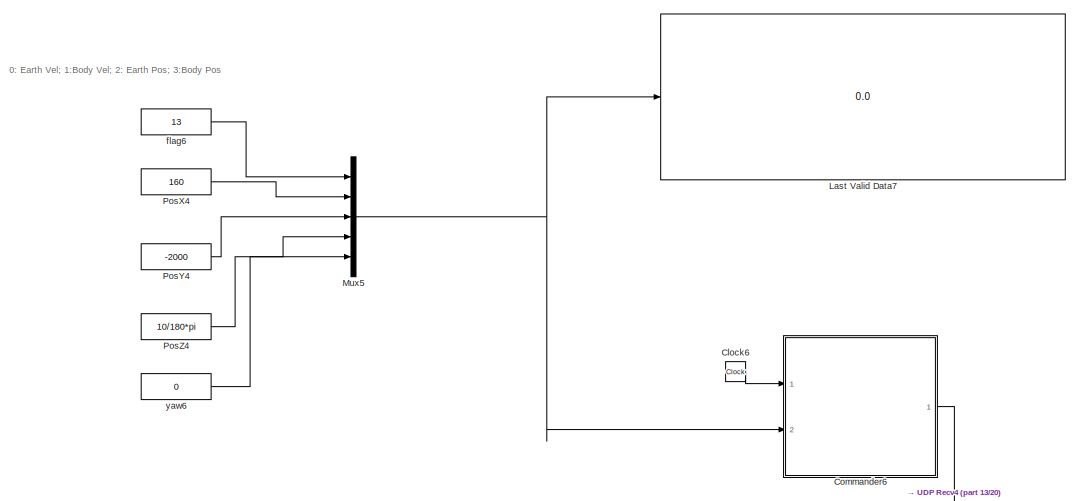
[diagram: root canvas - part 1/20, top center region]
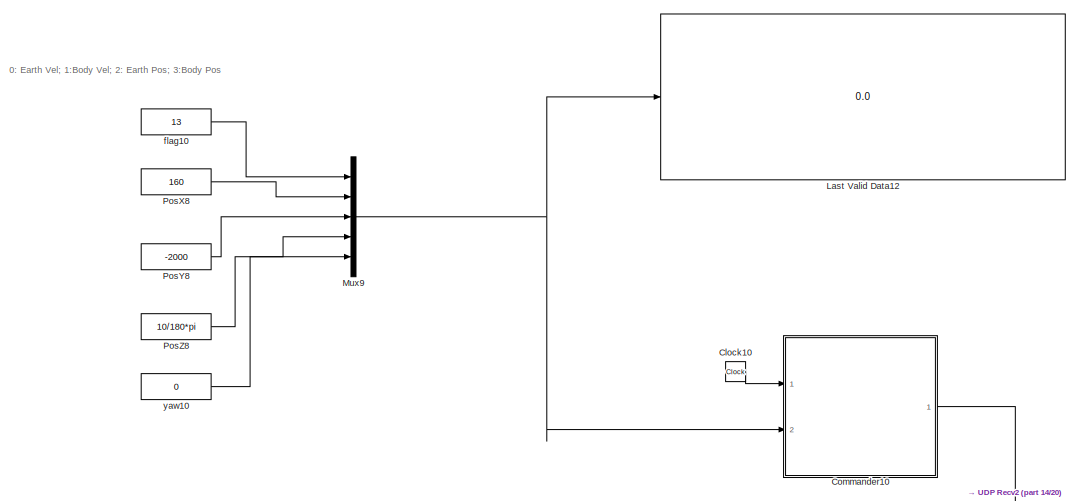
[diagram: root canvas - part 2/20, top right region]
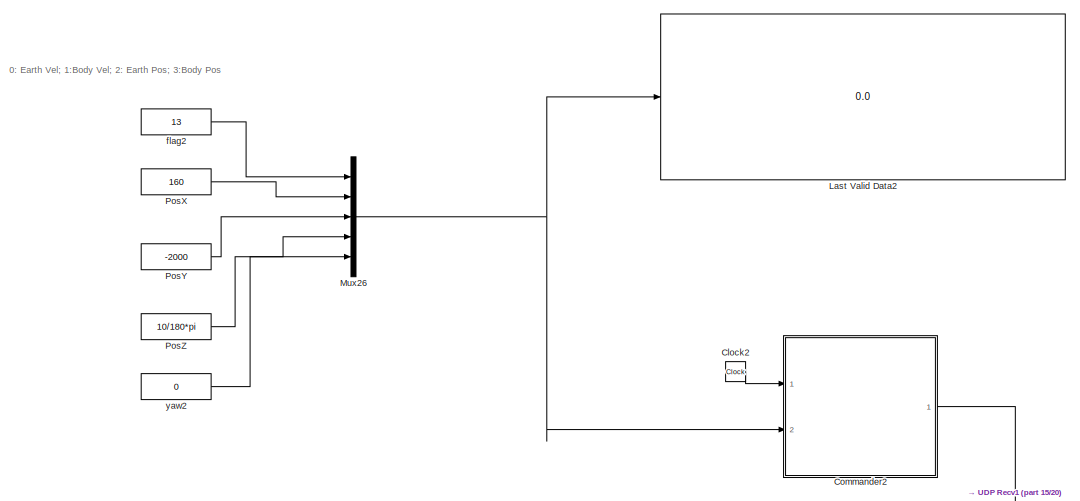
[diagram: root canvas - part 3/20, top left region]
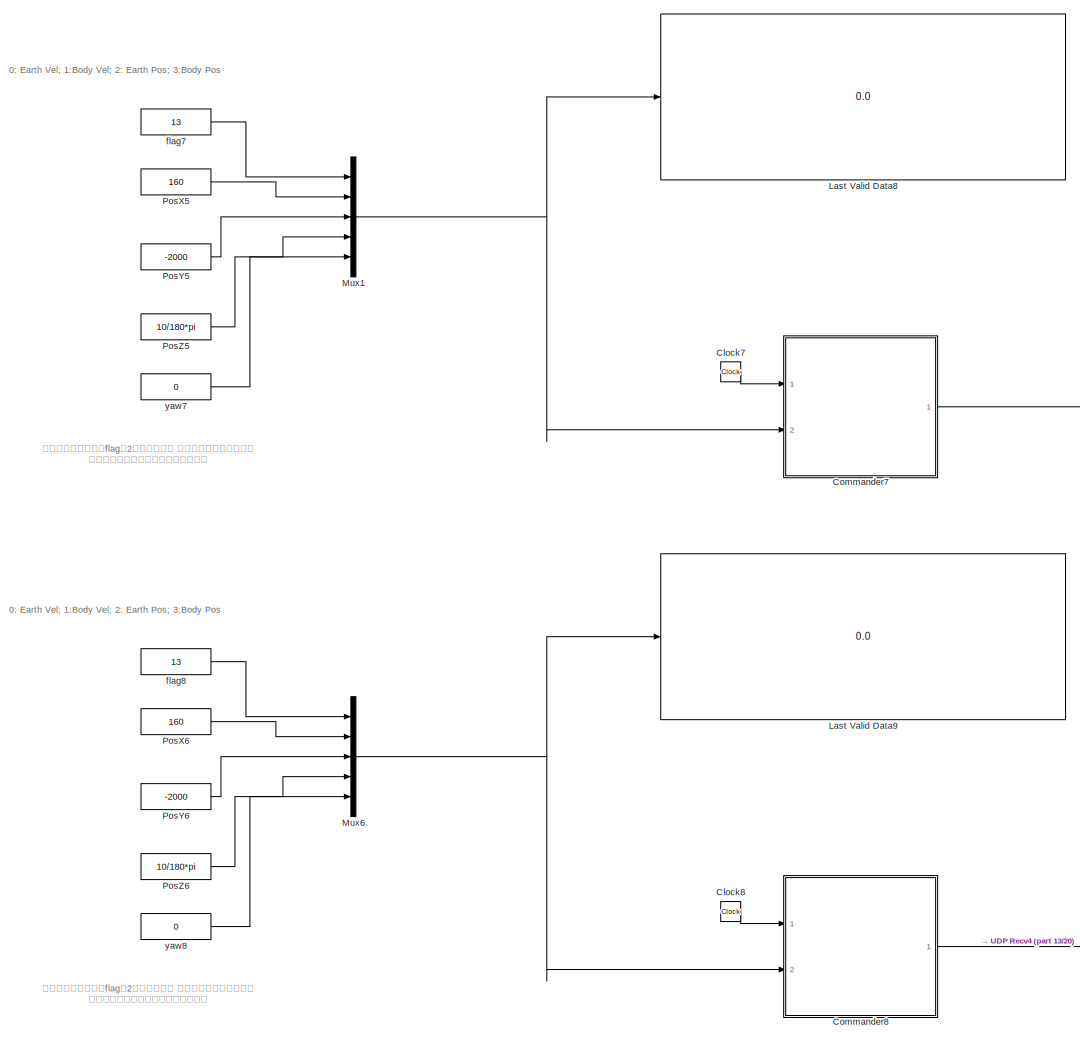
[diagram: root canvas - part 4/20, top center region]
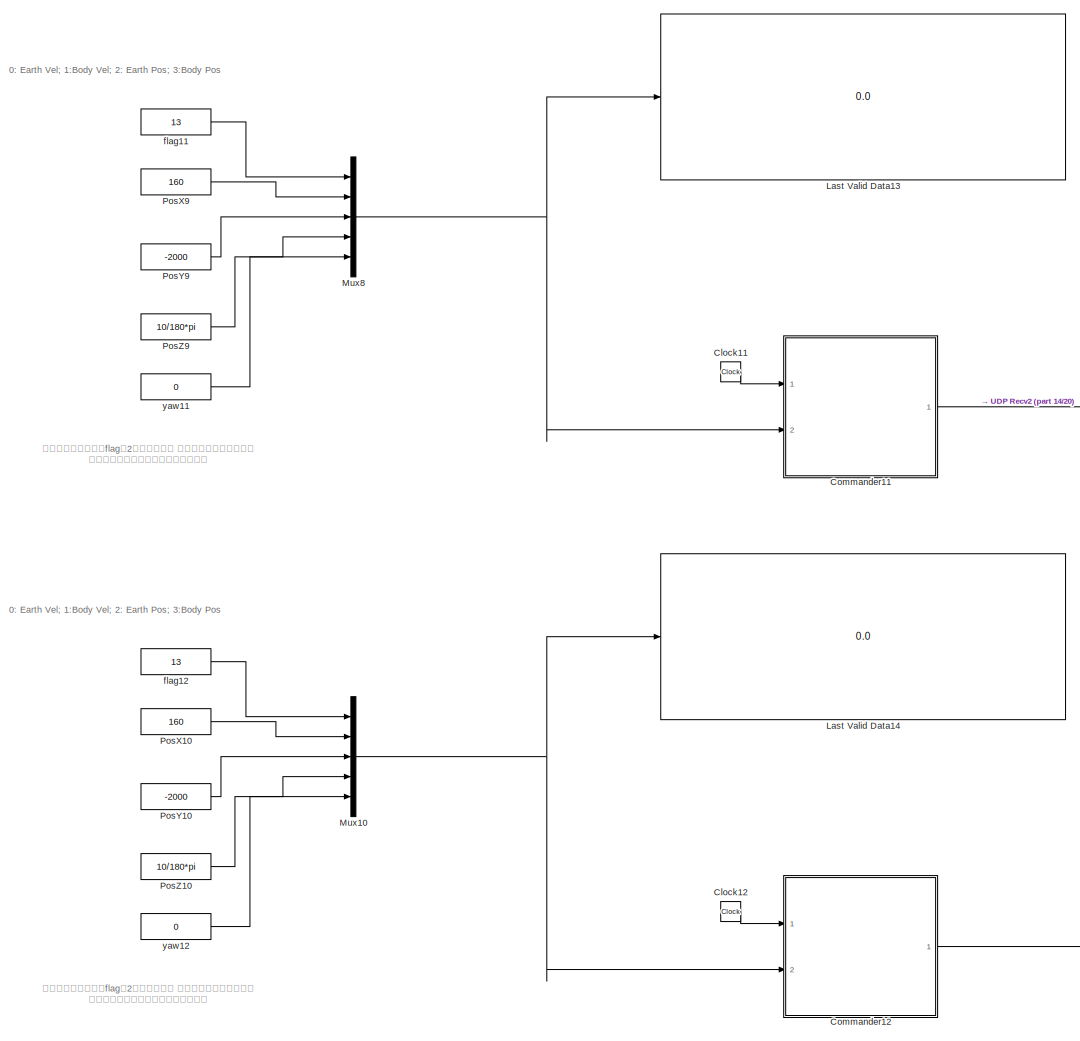
[diagram: root canvas - part 5/20, top right region]
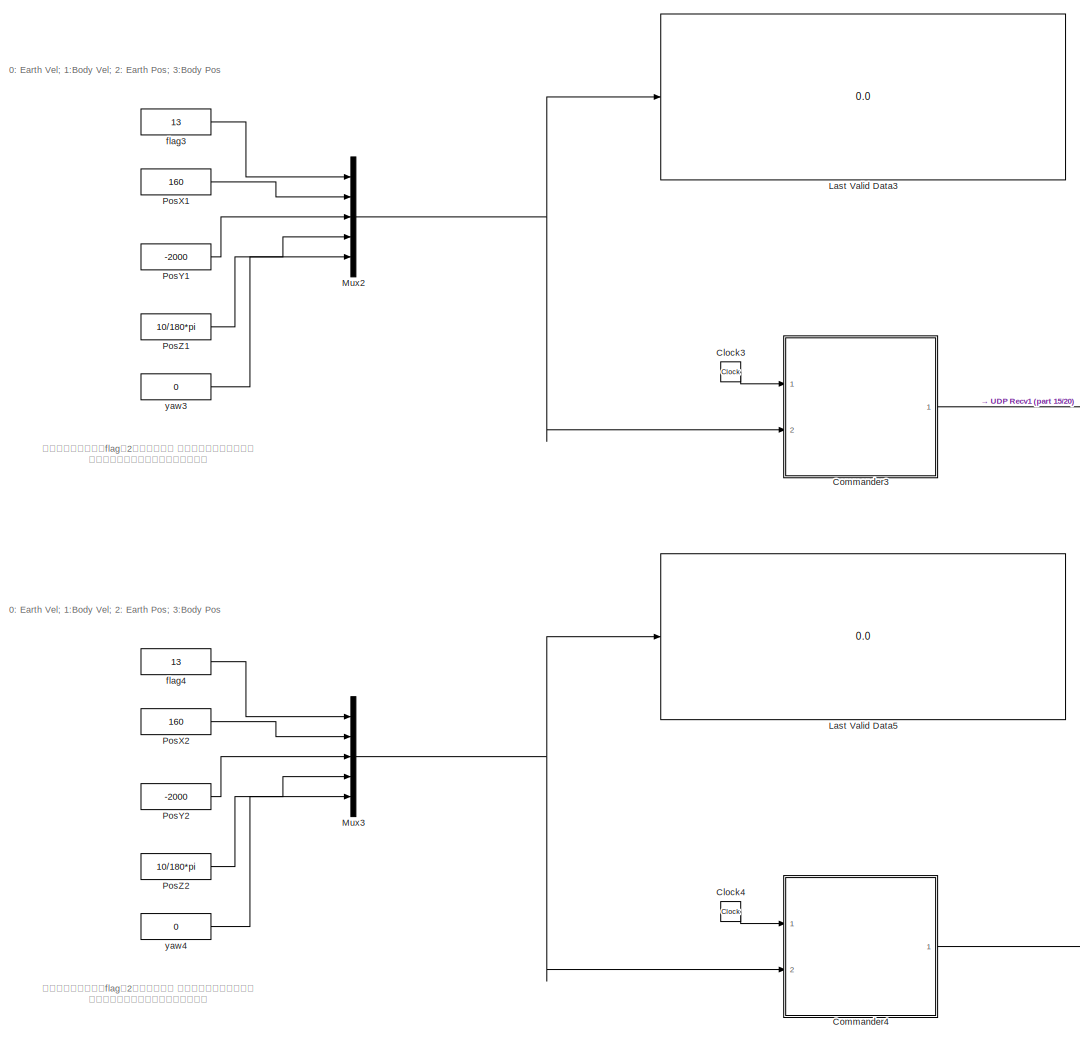
[diagram: root canvas - part 6/20, top left region]
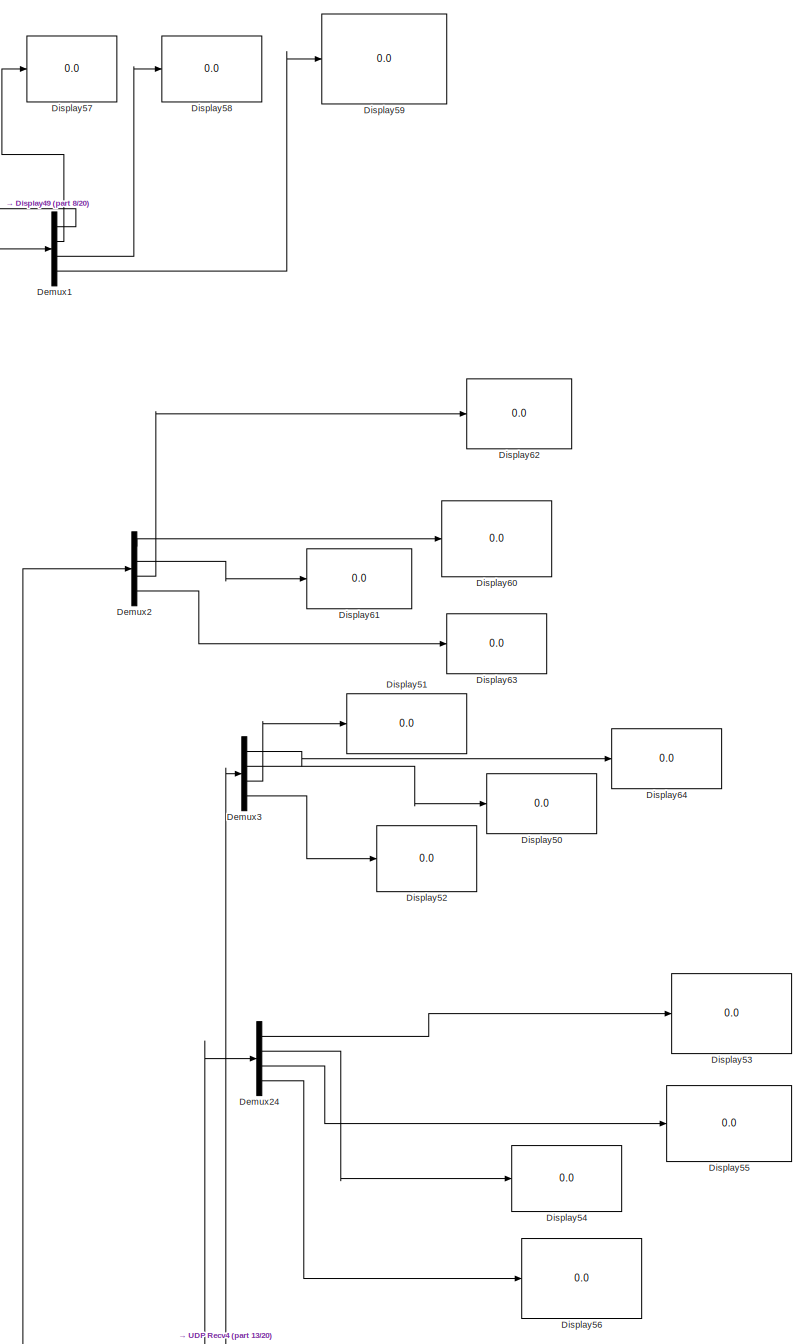
[diagram: root canvas - part 7/20, central region]
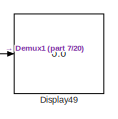
[diagram: root canvas - part 8/20, top center region]
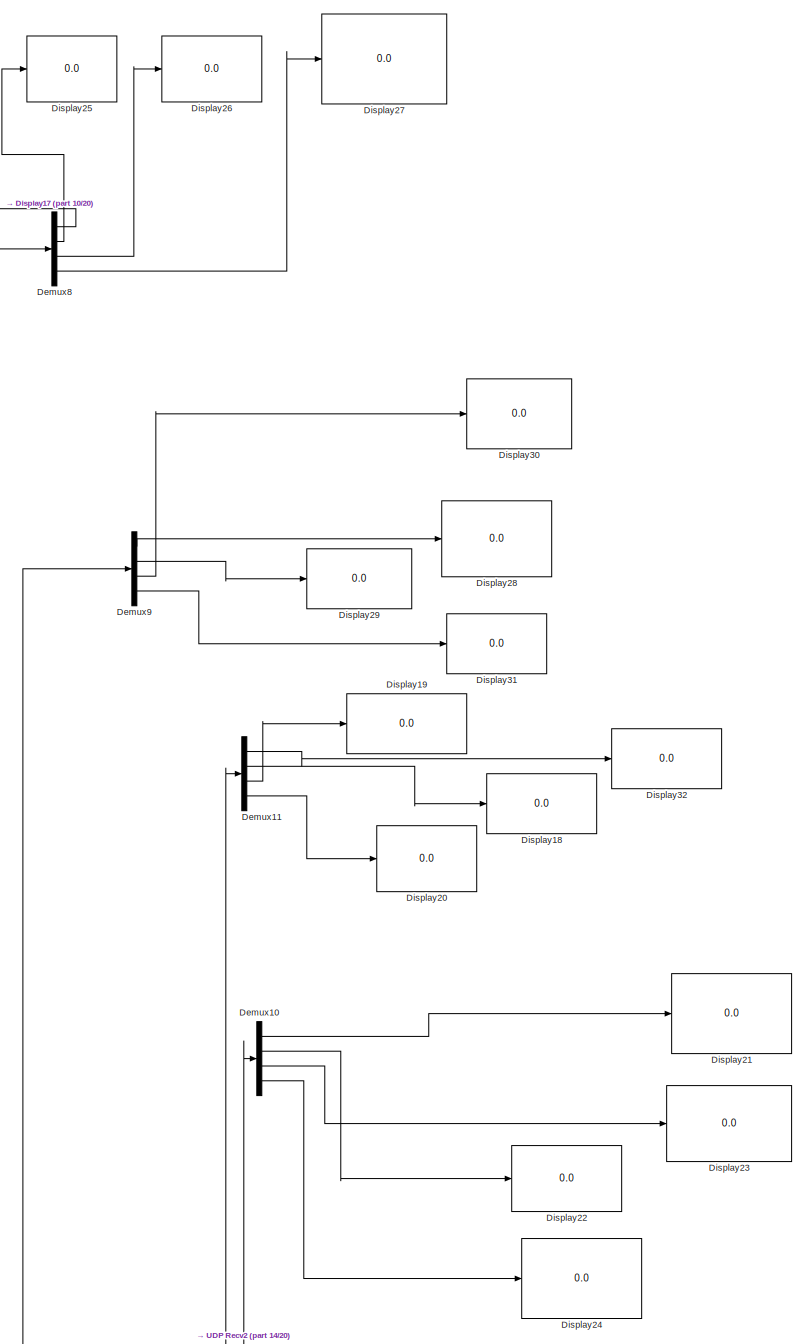
[diagram: root canvas - part 9/20, middle right region]
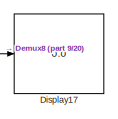
[diagram: root canvas - part 10/20, top right region]
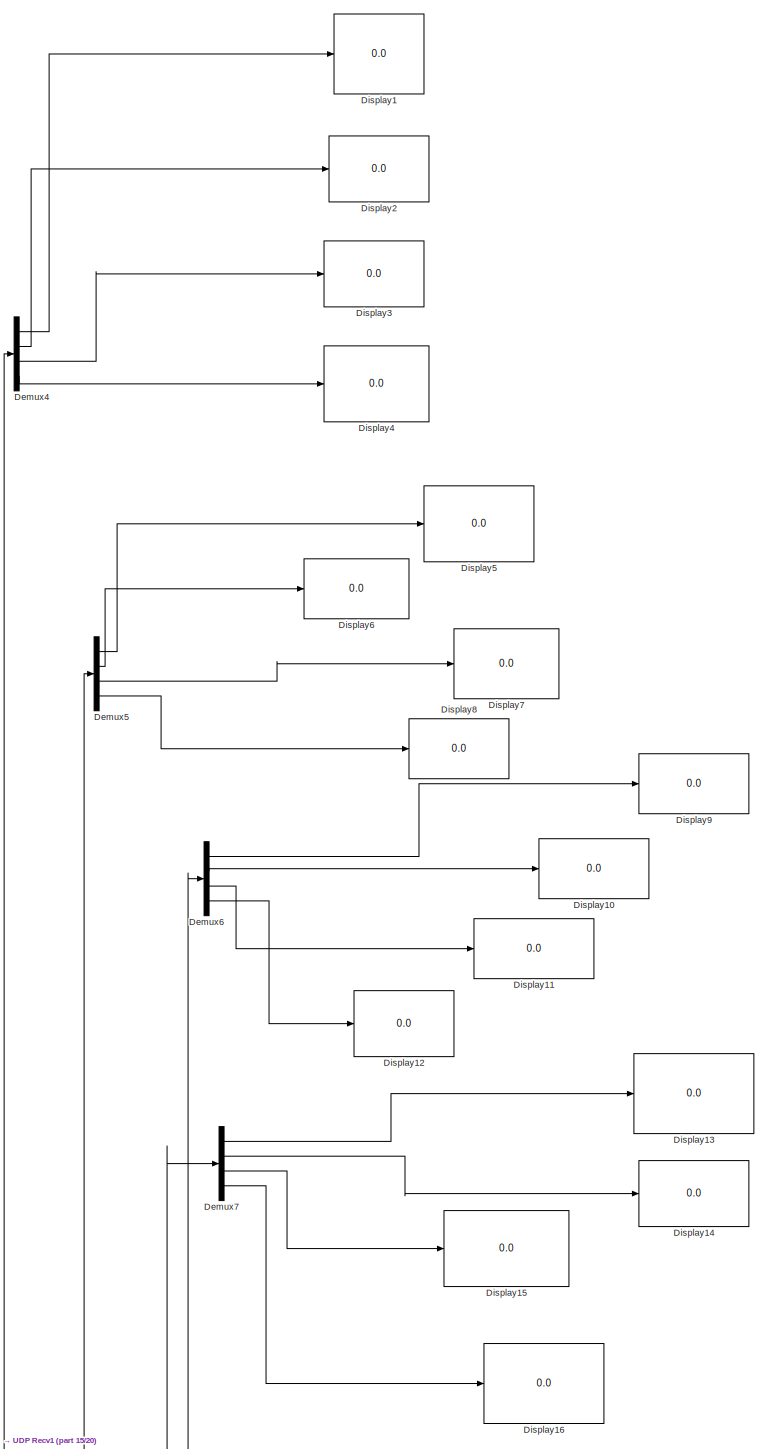
[diagram: root canvas - part 11/20, middle left region]
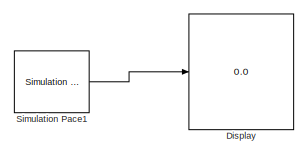
[diagram: root canvas - part 12/20, top left region]
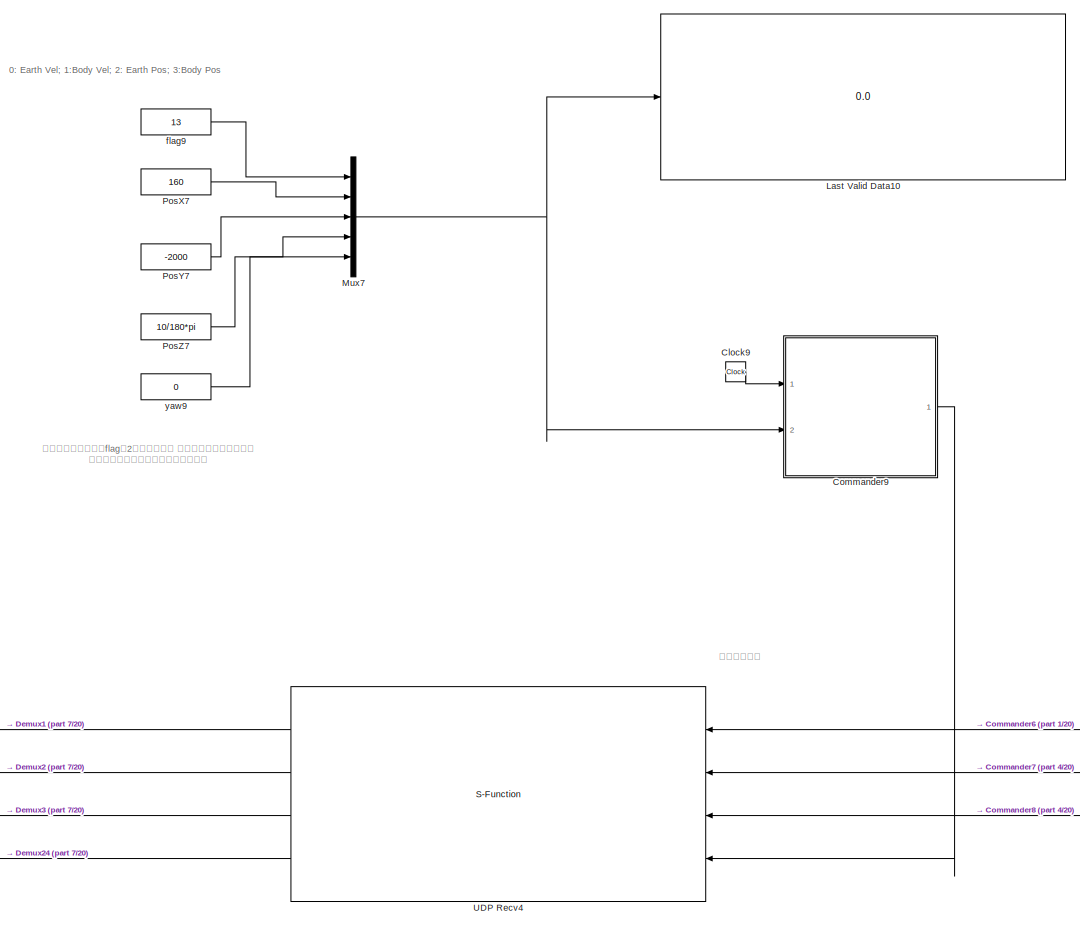
[diagram: root canvas - part 13/20, central region]
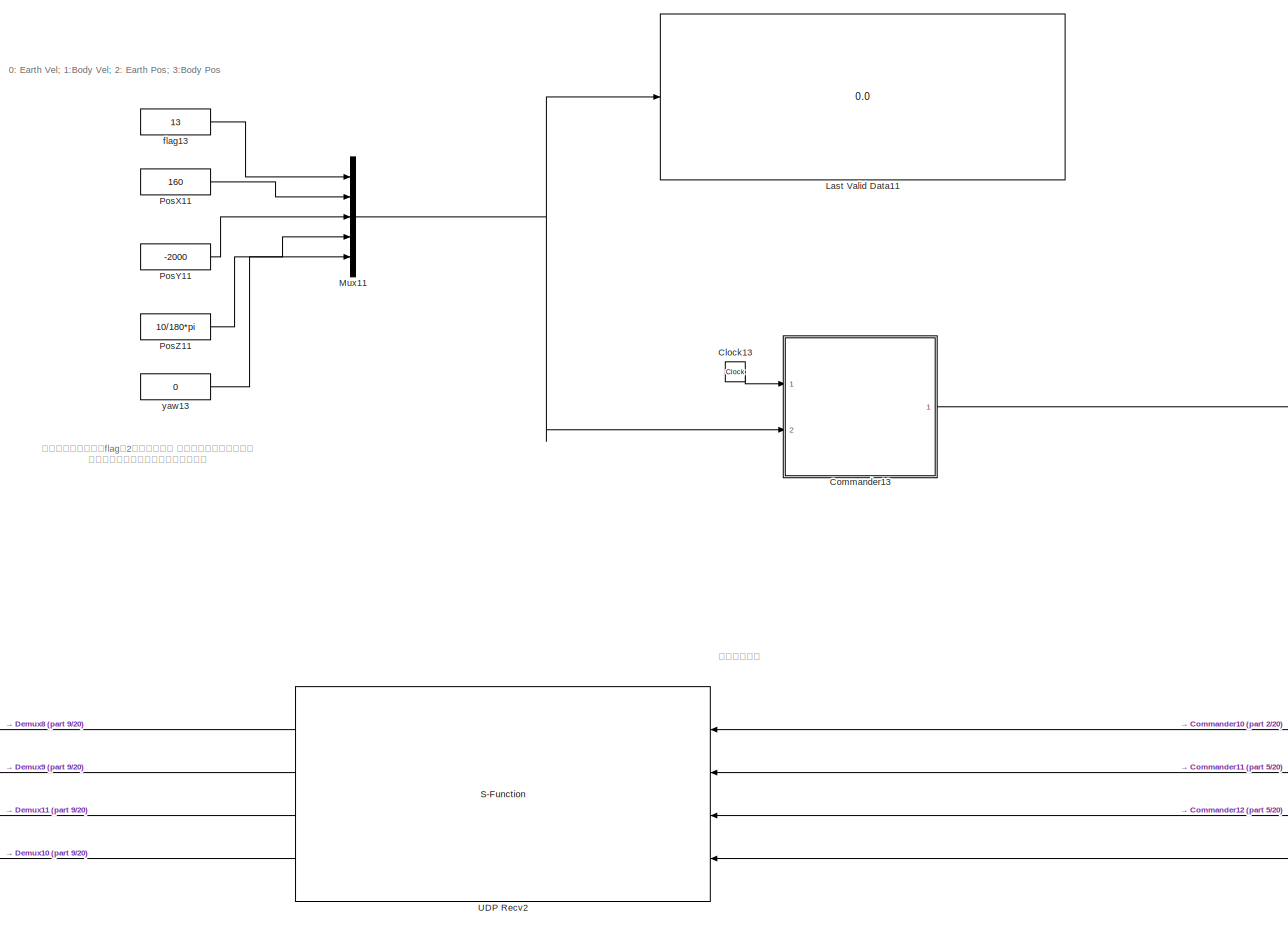
[diagram: root canvas - part 14/20, middle right region]
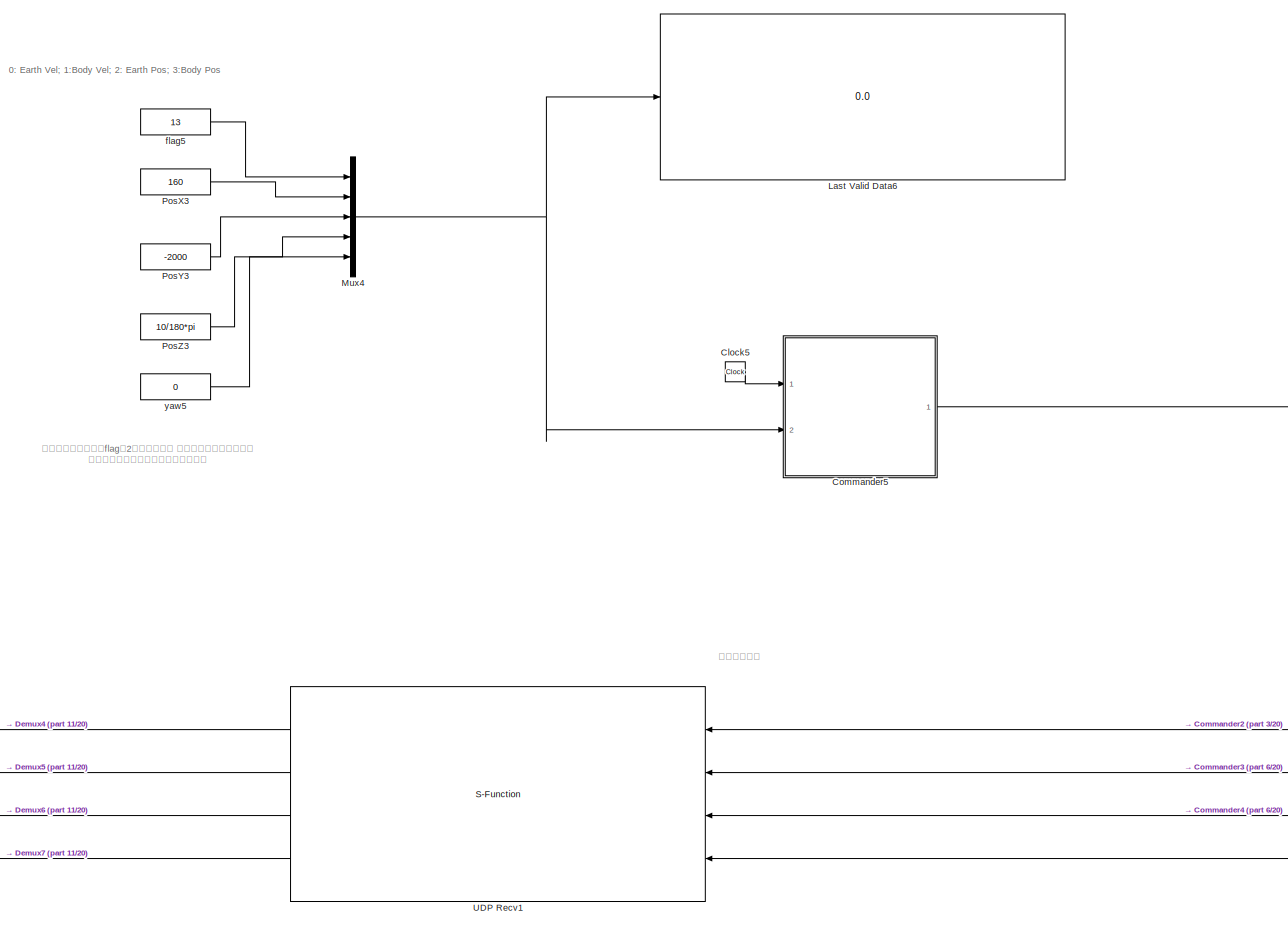
[diagram: root canvas - part 15/20, middle left region]
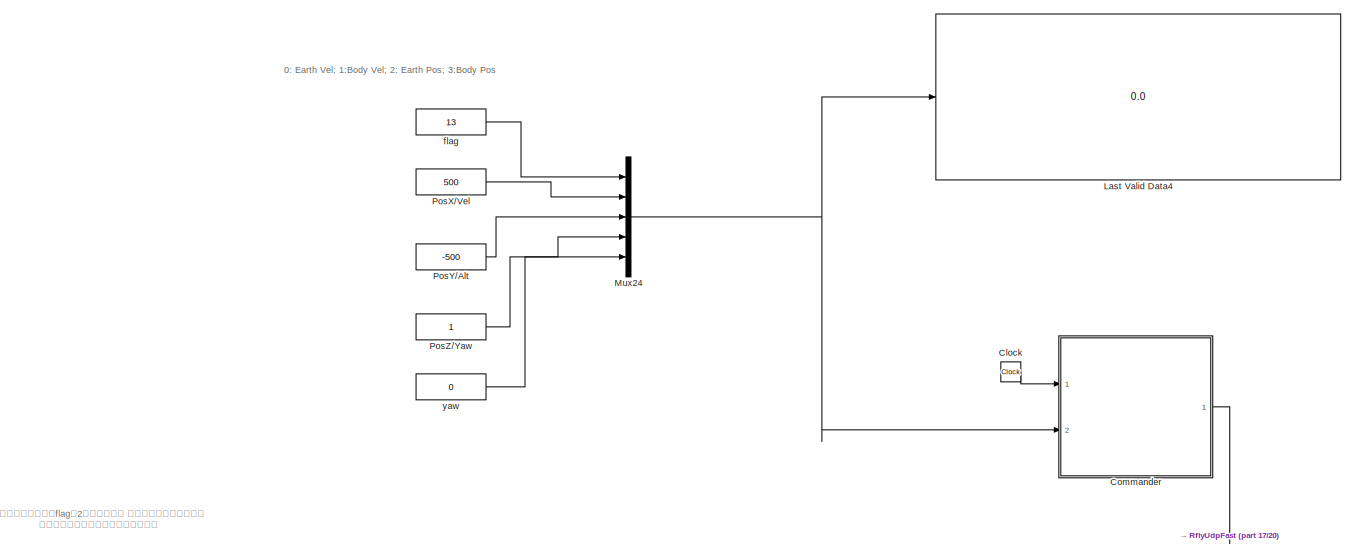
[diagram: root canvas - part 16/20, bottom left region]
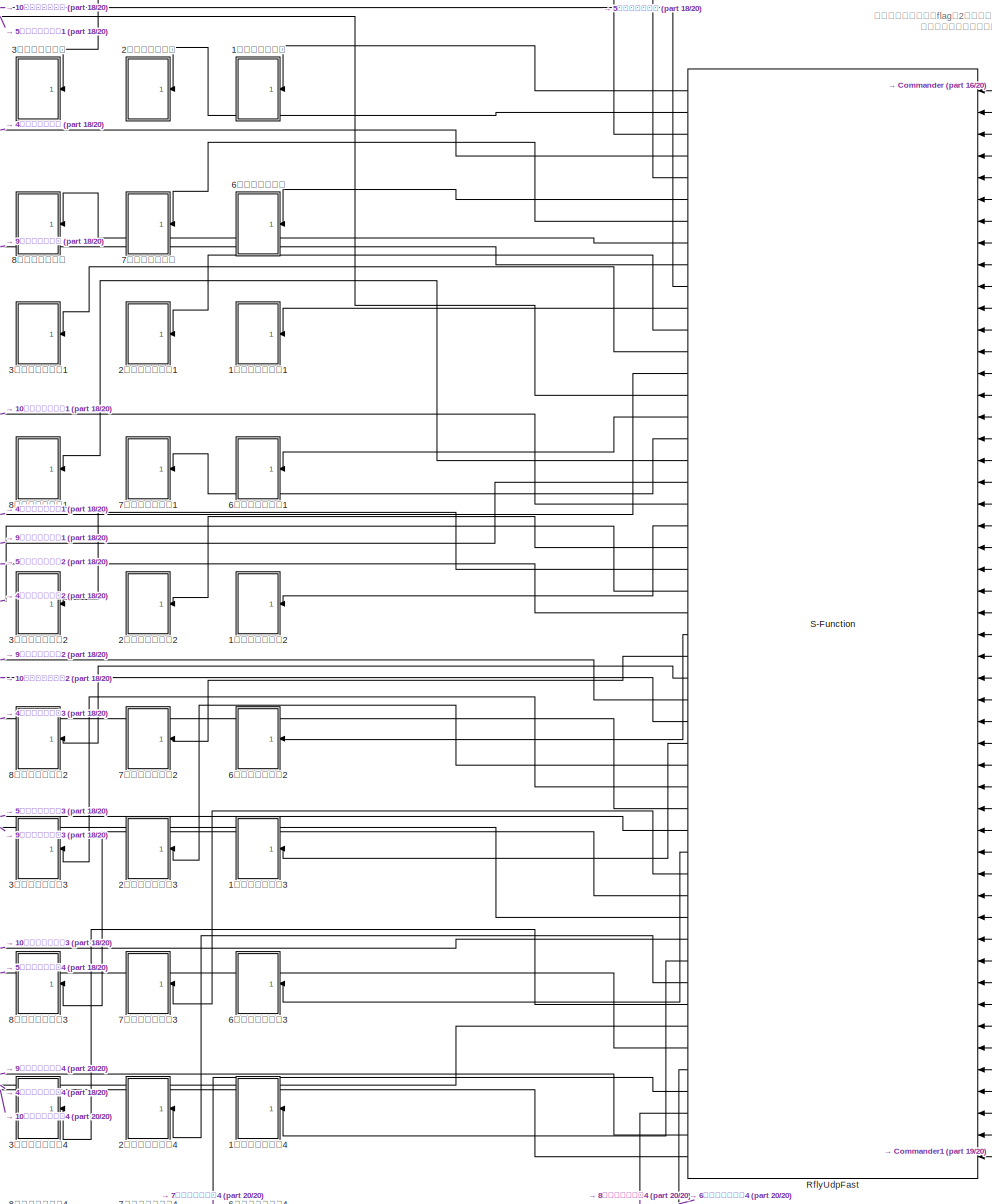
[diagram: root canvas - part 17/20, bottom left region]
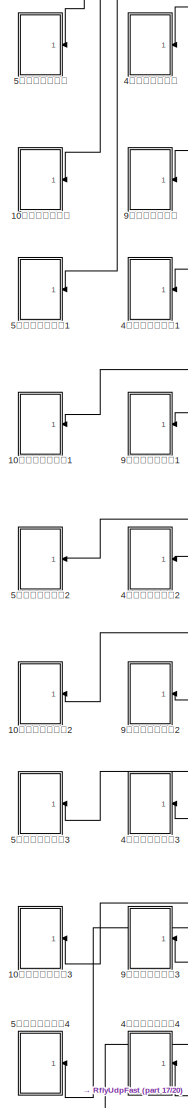
[diagram: root canvas - part 18/20, bottom left region]
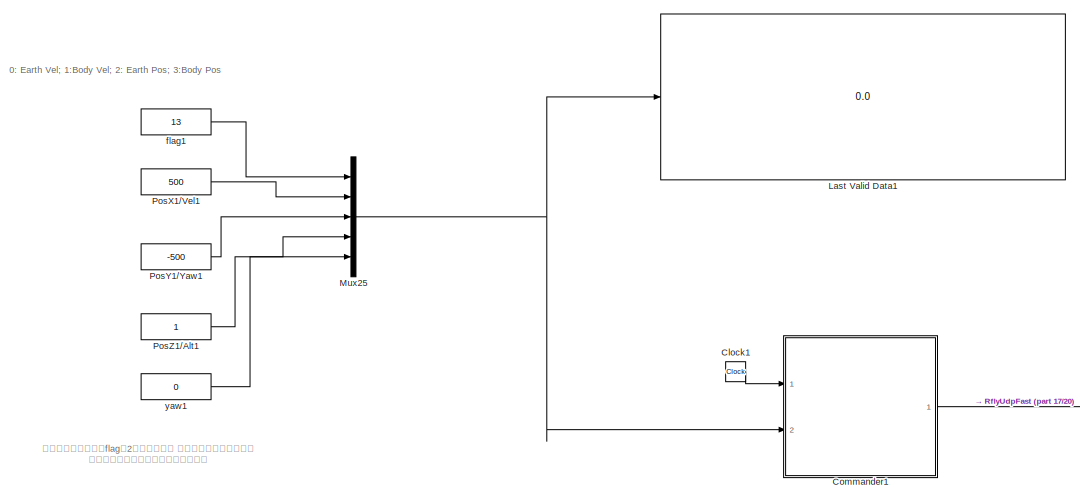
[diagram: root canvas - part 19/20, bottom left region]
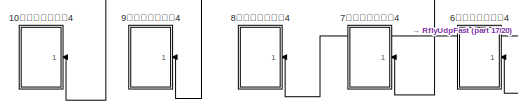
[diagram: root canvas - part 20/20, bottom left region]
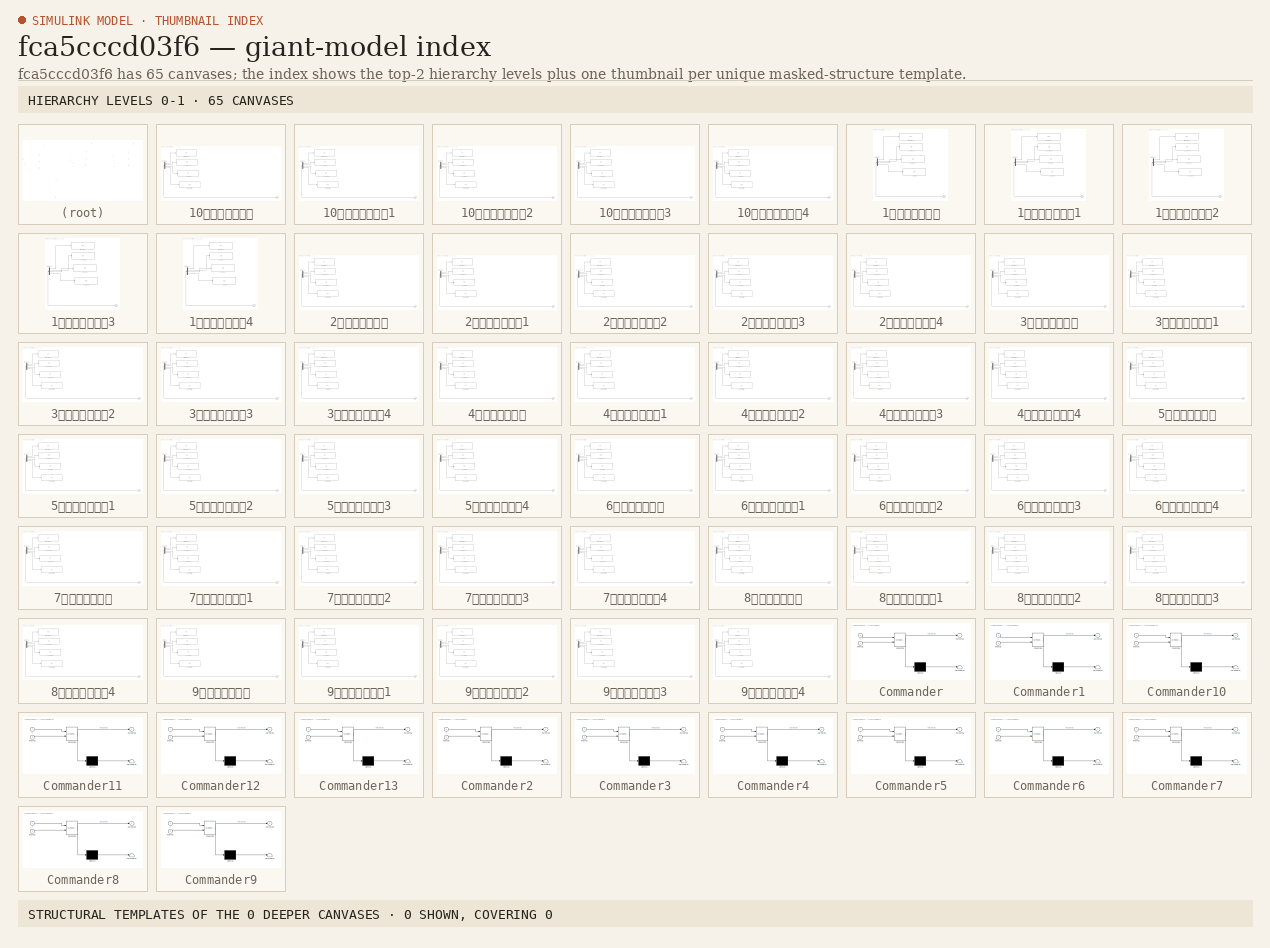
[diagram: thumbnail index - top-2 hierarchy levels (65 canvases) + 0 structural-template representatives of the remaining 0 canvases]
MODEL slx_fca5cccd03f6
KIND model
CONFIG AbsTol = auto
CONFIG EnableMultiTasking = on
CONFIG FixedStep = 1/30
CONFIG MaxStep = auto
CONFIG MinStep = auto
CONFIG PreLoadFcn = filepath  = fileparts(get_param(bdroot, 'FileName'))\ncd(filepath);
CONFIG RelTol = 1e-3
CONFIG SampleTimeConstraint = Unconstrained
CONFIG SolverName = FixedStepDiscrete
CONFIG StartTime = 0.0
CONFIG StopTime = inf
BLOCK [SubSystem] 10号飞机状态反馈
  Commented = on
  Ports = [1]
  RequestExecContextInheritance = off
BLOCK [Display] 10号飞机状态反馈/AngEular1
  Decimation = 1
  Ports = [1]
BLOCK [Demux] 10号飞机状态反馈/Demux1
  Ports = [1, 4]
BLOCK [Display] 10号飞机状态反馈/GlobalPos1
  Decimation = 1
  Ports = [1]
BLOCK [Inport] 10号飞机状态反馈/In1
BLOCK [Display] 10号飞机状态反馈/LocalPos1
  Decimation = 1
  Ports = [1]
BLOCK [Display] 10号飞机状态反馈/LocalVel1
  Decimation = 1
  Ports = [1]
BLOCK [SubSystem] 10号飞机状态反馈1
  Commented = on
  Ports = [1]
  RequestExecContextInheritance = off
BLOCK [Display] 10号飞机状态反馈1/AngEular1
  Decimation = 1
  Ports = [1]
BLOCK [Demux] 10号飞机状态反馈1/Demux1
  Ports = [1, 4]
BLOCK [Display] 10号飞机状态反馈1/GlobalPos1
  Decimation = 1
  Ports = [1]
BLOCK [Inport] 10号飞机状态反馈1/In1
BLOCK [Display] 10号飞机状态反馈1/LocalPos1
  Decimation = 1
  Ports = [1]
BLOCK [Display] 10号飞机状态反馈1/LocalVel1
  Decimation = 1
  Ports = [1]
BLOCK [SubSystem] 10号飞机状态反馈2
  Commented = on
  Ports = [1]
  RequestExecContextInheritance = off
BLOCK [Display] 10号飞机状态反馈2/AngEular1
  Decimation = 1
  Ports = [1]
BLOCK [Demux] 10号飞机状态反馈2/Demux1
  Ports = [1, 4]
BLOCK [Display] 10号飞机状态反馈2/GlobalPos1
  Decimation = 1
  Ports = [1]
BLOCK [Inport] 10号飞机状态反馈2/In1
BLOCK [Display] 10号飞机状态反馈2/LocalPos1
  Decimation = 1
  Ports = [1]
BLOCK [Display] 10号飞机状态反馈2/LocalVel1
  Decimation = 1
  Ports = [1]
BLOCK [SubSystem] 10号飞机状态反馈3
  Commented = on
  Ports = [1]
  RequestExecContextInheritance = off
BLOCK [Display] 10号飞机状态反馈3/AngEular1
  Decimation = 1
  Ports = [1]
BLOCK [Demux] 10号飞机状态反馈3/Demux1
  Ports = [1, 4]
BLOCK [Display] 10号飞机状态反馈3/GlobalPos1
  Decimation = 1
  Ports = [1]
BLOCK [Inport] 10号飞机状态反馈3/In1
BLOCK [Display] 10号飞机状态反馈3/LocalPos1
  Decimation = 1
  Ports = [1]
BLOCK [Display] 10号飞机状态反馈3/LocalVel1
  Decimation = 1
  Ports = [1]
BLOCK [SubSystem] 10号飞机状态反馈4
  Commented = on
  Ports = [1]
  RequestExecContextInheritance = off
BLOCK [Display] 10号飞机状态反馈4/AngEular1
  Decimation = 1
  Ports = [1]
BLOCK [Demux] 10号飞机状态反馈4/Demux1
  Ports = [1, 4]
BLOCK [Display] 10号飞机状态反馈4/GlobalPos1
  Decimation = 1
  Ports = [1]
BLOCK [Inport] 10号飞机状态反馈4/In1
BLOCK [Display] 10号飞机状态反馈4/LocalPos1
  Decimation = 1
  Ports = [1]
BLOCK [Display] 10号飞机状态反馈4/LocalVel1
  Decimation = 1
  Ports = [1]
BLOCK [SubSystem] 1号飞机状态反馈
  Commented = on
  Ports = [1]
  RequestExecContextInheritance = off
BLOCK [Display] 1号飞机状态反馈/AngEular
  Decimation = 1
  Ports = [1]
BLOCK [Demux] 1号飞机状态反馈/Demux2
  Ports = [1, 4]
BLOCK [Display] 1号飞机状态反馈/GlobalPos
  Decimation = 1
  Ports = [1]
BLOCK [Inport] 1号飞机状态反馈/In1
BLOCK [Display] 1号飞机状态反馈/LocalPos
  Decimation = 1
  Ports = [1]
BLOCK [Display] 1号飞机状态反馈/LocalVel
  Decimation = 1
  Ports = [1]
BLOCK [SubSystem] 1号飞机状态反馈1
  Commented = on
  Ports = [1]
  RequestExecContextInheritance = off
BLOCK [Display] 1号飞机状态反馈1/AngEular
  Decimation = 1
  Ports = [1]
BLOCK [Demux] 1号飞机状态反馈1/Demux2
  Ports = [1, 4]
BLOCK [Display] 1号飞机状态反馈1/GlobalPos
  Decimation = 1
  Ports = [1]
BLOCK [Inport] 1号飞机状态反馈1/In1
BLOCK [Display] 1号飞机状态反馈1/LocalPos
  Decimation = 1
  Ports = [1]
BLOCK [Display] 1号飞机状态反馈1/LocalVel
  Decimation = 1
  Ports = [1]
BLOCK [SubSystem] 1号飞机状态反馈2
  Commented = on
  Ports = [1]
  RequestExecContextInheritance = off
BLOCK [Display] 1号飞机状态反馈2/AngEular
  Decimation = 1
  Ports = [1]
BLOCK [Demux] 1号飞机状态反馈2/Demux2
  Ports = [1, 4]
BLOCK [Display] 1号飞机状态反馈2/GlobalPos
  Decimation = 1
  Ports = [1]
BLOCK [Inport] 1号飞机状态反馈2/In1
BLOCK [Display] 1号飞机状态反馈2/LocalPos
  Decimation = 1
  Ports = [1]
BLOCK [Display] 1号飞机状态反馈2/LocalVel
  Decimation = 1
  Ports = [1]
BLOCK [SubSystem] 1号飞机状态反馈3
  Commented = on
  Ports = [1]
  RequestExecContextInheritance = off
BLOCK [Display] 1号飞机状态反馈3/AngEular
  Decimation = 1
  Ports = [1]
BLOCK [Demux] 1号飞机状态反馈3/Demux2
  Ports = [1, 4]
BLOCK [Display] 1号飞机状态反馈3/GlobalPos
  Decimation = 1
  Ports = [1]
BLOCK [Inport] 1号飞机状态反馈3/In1
BLOCK [Display] 1号飞机状态反馈3/LocalPos
  Decimation = 1
  Ports = [1]
BLOCK [Display] 1号飞机状态反馈3/LocalVel
  Decimation = 1
  Ports = [1]
BLOCK [SubSystem] 1号飞机状态反馈4
  Commented = on
  Ports = [1]
  RequestExecContextInheritance = off
BLOCK [Display] 1号飞机状态反馈4/AngEular
  Decimation = 1
  Ports = [1]
BLOCK [Demux] 1号飞机状态反馈4/Demux2
  Ports = [1, 4]
BLOCK [Display] 1号飞机状态反馈4/GlobalPos
  Decimation = 1
  Ports = [1]
BLOCK [Inport] 1号飞机状态反馈4/In1
BLOCK [Display] 1号飞机状态反馈4/LocalPos
  Decimation = 1
  Ports = [1]
BLOCK [Display] 1号飞机状态反馈4/LocalVel
  Decimation = 1
  Ports = [1]
BLOCK [SubSystem] 2号飞机状态反馈
  Commented = on
  Ports = [1]
  RequestExecContextInheritance = off
BLOCK [Display] 2号飞机状态反馈/AngEular1
  Decimation = 1
  Ports = [1]
BLOCK [Demux] 2号飞机状态反馈/Demux1
  Ports = [1, 4]
BLOCK [Display] 2号飞机状态反馈/GlobalPos1
  Decimation = 1
  Ports = [1]
BLOCK [Inport] 2号飞机状态反馈/In1
BLOCK [Display] 2号飞机状态反馈/LocalPos1
  Decimation = 1
  Ports = [1]
BLOCK [Display] 2号飞机状态反馈/LocalVel1
  Decimation = 1
  Ports = [1]
BLOCK [SubSystem] 2号飞机状态反馈1
  Commented = on
  Ports = [1]
  RequestExecContextInheritance = off
BLOCK [Display] 2号飞机状态反馈1/AngEular1
  Decimation = 1
  Ports = [1]
BLOCK [Demux] 2号飞机状态反馈1/Demux1
  Ports = [1, 4]
BLOCK [Display] 2号飞机状态反馈1/GlobalPos1
  Decimation = 1
  Ports = [1]
BLOCK [Inport] 2号飞机状态反馈1/In1
BLOCK [Display] 2号飞机状态反馈1/LocalPos1
  Decimation = 1
  Ports = [1]
BLOCK [Display] 2号飞机状态反馈1/LocalVel1
  Decimation = 1
  Ports = [1]
BLOCK [SubSystem] 2号飞机状态反馈2
  Commented = on
  Ports = [1]
  RequestExecContextInheritance = off
BLOCK [Display] 2号飞机状态反馈2/AngEular1
  Decimation = 1
  Ports = [1]
BLOCK [Demux] 2号飞机状态反馈2/Demux1
  Ports = [1, 4]
BLOCK [Display] 2号飞机状态反馈2/GlobalPos1
  Decimation = 1
  Ports = [1]
BLOCK [Inport] 2号飞机状态反馈2/In1
BLOCK [Display] 2号飞机状态反馈2/LocalPos1
  Decimation = 1
  Ports = [1]
BLOCK [Display] 2号飞机状态反馈2/LocalVel1
  Decimation = 1
  Ports = [1]
BLOCK [SubSystem] 2号飞机状态反馈3
  Commented = on
  Ports = [1]
  RequestExecContextInheritance = off
BLOCK [Display] 2号飞机状态反馈3/AngEular1
  Decimation = 1
  Ports = [1]
BLOCK [Demux] 2号飞机状态反馈3/Demux1
  Ports = [1, 4]
BLOCK [Display] 2号飞机状态反馈3/GlobalPos1
  Decimation = 1
  Ports = [1]
BLOCK [Inport] 2号飞机状态反馈3/In1
BLOCK [Display] 2号飞机状态反馈3/LocalPos1
  Decimation = 1
  Ports = [1]
BLOCK [Display] 2号飞机状态反馈3/LocalVel1
  Decimation = 1
  Ports = [1]
BLOCK [SubSystem] 2号飞机状态反馈4
  Commented = on
  Ports = [1]
  RequestExecContextInheritance = off
BLOCK [Display] 2号飞机状态反馈4/AngEular1
  Decimation = 1
  Ports = [1]
BLOCK [Demux] 2号飞机状态反馈4/Demux1
  Ports = [1, 4]
BLOCK [Display] 2号飞机状态反馈4/GlobalPos1
  Decimation = 1
  Ports = [1]
BLOCK [Inport] 2号飞机状态反馈4/In1
BLOCK [Display] 2号飞机状态反馈4/LocalPos1
  Decimation = 1
  Ports = [1]
BLOCK [Display] 2号飞机状态反馈4/LocalVel1
  Decimation = 1
  Ports = [1]
BLOCK [SubSystem] 3号飞机状态反馈
  Commented = on
  Ports = [1]
  RequestExecContextInheritance = off
BLOCK [Display] 3号飞机状态反馈/AngEular1
  Decimation = 1
  Ports = [1]
BLOCK [Demux] 3号飞机状态反馈/Demux1
  Ports = [1, 4]
BLOCK [Display] 3号飞机状态反馈/GlobalPos1
  Decimation = 1
  Ports = [1]
BLOCK [Inport] 3号飞机状态反馈/In1
BLOCK [Display] 3号飞机状态反馈/LocalPos1
  Decimation = 1
  Ports = [1]
BLOCK [Display] 3号飞机状态反馈/LocalVel1
  Decimation = 1
  Ports = [1]
BLOCK [SubSystem] 3号飞机状态反馈1
  Commented = on
  Ports = [1]
  RequestExecContextInheritance = off
BLOCK [Display] 3号飞机状态反馈1/AngEular1
  Decimation = 1
  Ports = [1]
BLOCK [Demux] 3号飞机状态反馈1/Demux1
  Ports = [1, 4]
BLOCK [Display] 3号飞机状态反馈1/GlobalPos1
  Decimation = 1
  Ports = [1]
BLOCK [Inport] 3号飞机状态反馈1/In1
BLOCK [Display] 3号飞机状态反馈1/LocalPos1
  Decimation = 1
  Ports = [1]
BLOCK [Display] 3号飞机状态反馈1/LocalVel1
  Decimation = 1
  Ports = [1]
BLOCK [SubSystem] 3号飞机状态反馈2
  Commented = on
  Ports = [1]
  RequestExecContextInheritance = off
BLOCK [Display] 3号飞机状态反馈2/AngEular1
  Decimation = 1
  Ports = [1]
BLOCK [Demux] 3号飞机状态反馈2/Demux1
  Ports = [1, 4]
BLOCK [Display] 3号飞机状态反馈2/GlobalPos1
  Decimation = 1
  Ports = [1]
BLOCK [Inport] 3号飞机状态反馈2/In1
BLOCK [Display] 3号飞机状态反馈2/LocalPos1
  Decimation = 1
  Ports = [1]
BLOCK [Display] 3号飞机状态反馈2/LocalVel1
  Decimation = 1
  Ports = [1]
BLOCK [SubSystem] 3号飞机状态反馈3
  Commented = on
  Ports = [1]
  RequestExecContextInheritance = off
BLOCK [Display] 3号飞机状态反馈3/AngEular1
  Decimation = 1
  Ports = [1]
BLOCK [Demux] 3号飞机状态反馈3/Demux1
  Ports = [1, 4]
BLOCK [Display] 3号飞机状态反馈3/GlobalPos1
  Decimation = 1
  Ports = [1]
BLOCK [Inport] 3号飞机状态反馈3/In1
BLOCK [Display] 3号飞机状态反馈3/LocalPos1
  Decimation = 1
  Ports = [1]
BLOCK [Display] 3号飞机状态反馈3/LocalVel1
  Decimation = 1
  Ports = [1]
BLOCK [SubSystem] 3号飞机状态反馈4
  Commented = on
  Ports = [1]
  RequestExecContextInheritance = off
BLOCK [Display] 3号飞机状态反馈4/AngEular1
  Decimation = 1
  Ports = [1]
BLOCK [Demux] 3号飞机状态反馈4/Demux1
  Ports = [1, 4]
BLOCK [Display] 3号飞机状态反馈4/GlobalPos1
  Decimation = 1
  Ports = [1]
BLOCK [Inport] 3号飞机状态反馈4/In1
BLOCK [Display] 3号飞机状态反馈4/LocalPos1
  Decimation = 1
  Ports = [1]
BLOCK [Display] 3号飞机状态反馈4/LocalVel1
  Decimation = 1
  Ports = [1]
BLOCK [SubSystem] 4号飞机状态反馈
  Commented = on
  Ports = [1]
  RequestExecContextInheritance = off
BLOCK [Display] 4号飞机状态反馈/AngEular1
  Decimation = 1
  Ports = [1]
BLOCK [Demux] 4号飞机状态反馈/Demux1
  Ports = [1, 4]
BLOCK [Display] 4号飞机状态反馈/GlobalPos1
  Decimation = 1
  Ports = [1]
BLOCK [Inport] 4号飞机状态反馈/In1
BLOCK [Display] 4号飞机状态反馈/LocalPos1
  Decimation = 1
  Ports = [1]
BLOCK [Display] 4号飞机状态反馈/LocalVel1
  Decimation = 1
  Ports = [1]
BLOCK [SubSystem] 4号飞机状态反馈1
  Commented = on
  Ports = [1]
  RequestExecContextInheritance = off
BLOCK [Display] 4号飞机状态反馈1/AngEular1
  Decimation = 1
  Ports = [1]
BLOCK [Demux] 4号飞机状态反馈1/Demux1
  Ports = [1, 4]
BLOCK [Display] 4号飞机状态反馈1/GlobalPos1
  Decimation = 1
  Ports = [1]
BLOCK [Inport] 4号飞机状态反馈1/In1
BLOCK [Display] 4号飞机状态反馈1/LocalPos1
  Decimation = 1
  Ports = [1]
BLOCK [Display] 4号飞机状态反馈1/LocalVel1
  Decimation = 1
  Ports = [1]
BLOCK [SubSystem] 4号飞机状态反馈2
  Commented = on
  Ports = [1]
  RequestExecContextInheritance = off
BLOCK [Display] 4号飞机状态反馈2/AngEular1
  Decimation = 1
  Ports = [1]
BLOCK [Demux] 4号飞机状态反馈2/Demux1
  Ports = [1, 4]
BLOCK [Display] 4号飞机状态反馈2/GlobalPos1
  Decimation = 1
  Ports = [1]
BLOCK [Inport] 4号飞机状态反馈2/In1
BLOCK [Display] 4号飞机状态反馈2/LocalPos1
  Decimation = 1
  Ports = [1]
BLOCK [Display] 4号飞机状态反馈2/LocalVel1
  Decimation = 1
  Ports = [1]
BLOCK [SubSystem] 4号飞机状态反馈3
  Commented = on
  Ports = [1]
  RequestExecContextInheritance = off
BLOCK [Display] 4号飞机状态反馈3/AngEular1
  Decimation = 1
  Ports = [1]
BLOCK [Demux] 4号飞机状态反馈3/Demux1
  Ports = [1, 4]
BLOCK [Display] 4号飞机状态反馈3/GlobalPos1
  Decimation = 1
  Ports = [1]
BLOCK [Inport] 4号飞机状态反馈3/In1
BLOCK [Display] 4号飞机状态反馈3/LocalPos1
  Decimation = 1
  Ports = [1]
BLOCK [Display] 4号飞机状态反馈3/LocalVel1
  Decimation = 1
  Ports = [1]
BLOCK [SubSystem] 4号飞机状态反馈4
  Commented = on
  Ports = [1]
  RequestExecContextInheritance = off
BLOCK [Display] 4号飞机状态反馈4/AngEular1
  Decimation = 1
  Ports = [1]
BLOCK [Demux] 4号飞机状态反馈4/Demux1
  Ports = [1, 4]
BLOCK [Display] 4号飞机状态反馈4/GlobalPos1
  Decimation = 1
  Ports = [1]
BLOCK [Inport] 4号飞机状态反馈4/In1
BLOCK [Display] 4号飞机状态反馈4/LocalPos1
  Decimation = 1
  Ports = [1]
BLOCK [Display] 4号飞机状态反馈4/LocalVel1
  Decimation = 1
  Ports = [1]
BLOCK [SubSystem] 5号飞机状态反馈
  Commented = on
  Ports = [1]
  RequestExecContextInheritance = off
BLOCK [Display] 5号飞机状态反馈/AngEular1
  Decimation = 1
  Ports = [1]
BLOCK [Demux] 5号飞机状态反馈/Demux1
  Ports = [1, 4]
BLOCK [Display] 5号飞机状态反馈/GlobalPos1
  Decimation = 1
  Ports = [1]
BLOCK [Inport] 5号飞机状态反馈/In1
BLOCK [Display] 5号飞机状态反馈/LocalPos1
  Decimation = 1
  Ports = [1]
BLOCK [Display] 5号飞机状态反馈/LocalVel1
  Decimation = 1
  Ports = [1]
BLOCK [SubSystem] 5号飞机状态反馈1
  Commented = on
  Ports = [1]
  RequestExecContextInheritance = off
BLOCK [Display] 5号飞机状态反馈1/AngEular1
  Decimation = 1
  Ports = [1]
BLOCK [Demux] 5号飞机状态反馈1/Demux1
  Ports = [1, 4]
BLOCK [Display] 5号飞机状态反馈1/GlobalPos1
  Decimation = 1
  Ports = [1]
BLOCK [Inport] 5号飞机状态反馈1/In1
BLOCK [Display] 5号飞机状态反馈1/LocalPos1
  Decimation = 1
  Ports = [1]
BLOCK [Display] 5号飞机状态反馈1/LocalVel1
  Decimation = 1
  Ports = [1]
BLOCK [SubSystem] 5号飞机状态反馈2
  Commented = on
  Ports = [1]
  RequestExecContextInheritance = off
BLOCK [Display] 5号飞机状态反馈2/AngEular1
  Decimation = 1
  Ports = [1]
BLOCK [Demux] 5号飞机状态反馈2/Demux1
  Ports = [1, 4]
BLOCK [Display] 5号飞机状态反馈2/GlobalPos1
  Decimation = 1
  Ports = [1]
BLOCK [Inport] 5号飞机状态反馈2/In1
BLOCK [Display] 5号飞机状态反馈2/LocalPos1
  Decimation = 1
  Ports = [1]
BLOCK [Display] 5号飞机状态反馈2/LocalVel1
  Decimation = 1
  Ports = [1]
BLOCK [SubSystem] 5号飞机状态反馈3
  Commented = on
  Ports = [1]
  RequestExecContextInheritance = off
BLOCK [Display] 5号飞机状态反馈3/AngEular1
  Decimation = 1
  Ports = [1]
BLOCK [Demux] 5号飞机状态反馈3/Demux1
  Ports = [1, 4]
BLOCK [Display] 5号飞机状态反馈3/GlobalPos1
  Decimation = 1
  Ports = [1]
BLOCK [Inport] 5号飞机状态反馈3/In1
BLOCK [Display] 5号飞机状态反馈3/LocalPos1
  Decimation = 1
  Ports = [1]
BLOCK [Display] 5号飞机状态反馈3/LocalVel1
  Decimation = 1
  Ports = [1]
BLOCK [SubSystem] 5号飞机状态反馈4
  Commented = on
  Ports = [1]
  RequestExecContextInheritance = off
BLOCK [Display] 5号飞机状态反馈4/AngEular1
  Decimation = 1
  Ports = [1]
BLOCK [Demux] 5号飞机状态反馈4/Demux1
  Ports = [1, 4]
BLOCK [Display] 5号飞机状态反馈4/GlobalPos1
  Decimation = 1
  Ports = [1]
BLOCK [Inport] 5号飞机状态反馈4/In1
BLOCK [Display] 5号飞机状态反馈4/LocalPos1
  Decimation = 1
  Ports = [1]
BLOCK [Display] 5号飞机状态反馈4/LocalVel1
  Decimation = 1
  Ports = [1]
BLOCK [SubSystem] 6号飞机状态反馈
  Commented = on
  Ports = [1]
  RequestExecContextInheritance = off
BLOCK [Display] 6号飞机状态反馈/AngEular1
  Decimation = 1
  Ports = [1]
BLOCK [Demux] 6号飞机状态反馈/Demux1
  Ports = [1, 4]
BLOCK [Display] 6号飞机状态反馈/GlobalPos1
  Decimation = 1
  Ports = [1]
BLOCK [Inport] 6号飞机状态反馈/In1
BLOCK [Display] 6号飞机状态反馈/LocalPos1
  Decimation = 1
  Ports = [1]
BLOCK [Display] 6号飞机状态反馈/LocalVel1
  Decimation = 1
  Ports = [1]
BLOCK [SubSystem] 6号飞机状态反馈1
  Commented = on
  Ports = [1]
  RequestExecContextInheritance = off
BLOCK [Display] 6号飞机状态反馈1/AngEular1
  Decimation = 1
  Ports = [1]
BLOCK [Demux] 6号飞机状态反馈1/Demux1
  Ports = [1, 4]
BLOCK [Display] 6号飞机状态反馈1/GlobalPos1
  Decimation = 1
  Ports = [1]
BLOCK [Inport] 6号飞机状态反馈1/In1
BLOCK [Display] 6号飞机状态反馈1/LocalPos1
  Decimation = 1
  Ports = [1]
BLOCK [Display] 6号飞机状态反馈1/LocalVel1
  Decimation = 1
  Ports = [1]
BLOCK [SubSystem] 6号飞机状态反馈2
  Commented = on
  Ports = [1]
  RequestExecContextInheritance = off
BLOCK [Display] 6号飞机状态反馈2/AngEular1
  Decimation = 1
  Ports = [1]
BLOCK [Demux] 6号飞机状态反馈2/Demux1
  Ports = [1, 4]
BLOCK [Display] 6号飞机状态反馈2/GlobalPos1
  Decimation = 1
  Ports = [1]
BLOCK [Inport] 6号飞机状态反馈2/In1
BLOCK [Display] 6号飞机状态反馈2/LocalPos1
  Decimation = 1
  Ports = [1]
BLOCK [Display] 6号飞机状态反馈2/LocalVel1
  Decimation = 1
  Ports = [1]
BLOCK [SubSystem] 6号飞机状态反馈3
  Commented = on
  Ports = [1]
  RequestExecContextInheritance = off
BLOCK [Display] 6号飞机状态反馈3/AngEular1
  Decimation = 1
  Ports = [1]
BLOCK [Demux] 6号飞机状态反馈3/Demux1
  Ports = [1, 4]
BLOCK [Display] 6号飞机状态反馈3/GlobalPos1
  Decimation = 1
  Ports = [1]
BLOCK [Inport] 6号飞机状态反馈3/In1
BLOCK [Display] 6号飞机状态反馈3/LocalPos1
  Decimation = 1
  Ports = [1]
BLOCK [Display] 6号飞机状态反馈3/LocalVel1
  Decimation = 1
  Ports = [1]
BLOCK [SubSystem] 6号飞机状态反馈4
  Commented = on
  Ports = [1]
  RequestExecContextInheritance = off
BLOCK [Display] 6号飞机状态反馈4/AngEular1
  Decimation = 1
  Ports = [1]
BLOCK [Demux] 6号飞机状态反馈4/Demux1
  Ports = [1, 4]
BLOCK [Display] 6号飞机状态反馈4/GlobalPos1
  Decimation = 1
  Ports = [1]
BLOCK [Inport] 6号飞机状态反馈4/In1
BLOCK [Display] 6号飞机状态反馈4/LocalPos1
  Decimation = 1
  Ports = [1]
BLOCK [Display] 6号飞机状态反馈4/LocalVel1
  Decimation = 1
  Ports = [1]
BLOCK [SubSystem] 7号飞机状态反馈
  Commented = on
  Ports = [1]
  RequestExecContextInheritance = off
BLOCK [Display] 7号飞机状态反馈/AngEular1
  Decimation = 1
  Ports = [1]
BLOCK [Demux] 7号飞机状态反馈/Demux1
  Ports = [1, 4]
BLOCK [Display] 7号飞机状态反馈/GlobalPos1
  Decimation = 1
  Ports = [1]
BLOCK [Inport] 7号飞机状态反馈/In1
BLOCK [Display] 7号飞机状态反馈/LocalPos1
  Decimation = 1
  Ports = [1]
BLOCK [Display] 7号飞机状态反馈/LocalVel1
  Decimation = 1
  Ports = [1]
BLOCK [SubSystem] 7号飞机状态反馈1
  Commented = on
  Ports = [1]
  RequestExecContextInheritance = off
BLOCK [Display] 7号飞机状态反馈1/AngEular1
  Decimation = 1
  Ports = [1]
BLOCK [Demux] 7号飞机状态反馈1/Demux1
  Ports = [1, 4]
BLOCK [Display] 7号飞机状态反馈1/GlobalPos1
  Decimation = 1
  Ports = [1]
BLOCK [Inport] 7号飞机状态反馈1/In1
BLOCK [Display] 7号飞机状态反馈1/LocalPos1
  Decimation = 1
  Ports = [1]
BLOCK [Display] 7号飞机状态反馈1/LocalVel1
  Decimation = 1
  Ports = [1]
BLOCK [SubSystem] 7号飞机状态反馈2
  Commented = on
  Ports = [1]
  RequestExecContextInheritance = off
BLOCK [Display] 7号飞机状态反馈2/AngEular1
  Decimation = 1
  Ports = [1]
BLOCK [Demux] 7号飞机状态反馈2/Demux1
  Ports = [1, 4]
BLOCK [Display] 7号飞机状态反馈2/GlobalPos1
  Decimation = 1
  Ports = [1]
BLOCK [Inport] 7号飞机状态反馈2/In1
BLOCK [Display] 7号飞机状态反馈2/LocalPos1
  Decimation = 1
  Ports = [1]
BLOCK [Display] 7号飞机状态反馈2/LocalVel1
  Decimation = 1
  Ports = [1]
BLOCK [SubSystem] 7号飞机状态反馈3
  Commented = on
  Ports = [1]
  RequestExecContextInheritance = off
BLOCK [Display] 7号飞机状态反馈3/AngEular1
  Decimation = 1
  Ports = [1]
BLOCK [Demux] 7号飞机状态反馈3/Demux1
  Ports = [1, 4]
BLOCK [Display] 7号飞机状态反馈3/GlobalPos1
  Decimation = 1
  Ports = [1]
BLOCK [Inport] 7号飞机状态反馈3/In1
BLOCK [Display] 7号飞机状态反馈3/LocalPos1
  Decimation = 1
  Ports = [1]
BLOCK [Display] 7号飞机状态反馈3/LocalVel1
  Decimation = 1
  Ports = [1]
BLOCK [SubSystem] 7号飞机状态反馈4
  Commented = on
  Ports = [1]
  RequestExecContextInheritance = off
BLOCK [Display] 7号飞机状态反馈4/AngEular1
  Decimation = 1
  Ports = [1]
BLOCK [Demux] 7号飞机状态反馈4/Demux1
  Ports = [1, 4]
BLOCK [Display] 7号飞机状态反馈4/GlobalPos1
  Decimation = 1
  Ports = [1]
BLOCK [Inport] 7号飞机状态反馈4/In1
BLOCK [Display] 7号飞机状态反馈4/LocalPos1
  Decimation = 1
  Ports = [1]
BLOCK [Display] 7号飞机状态反馈4/LocalVel1
  Decimation = 1
  Ports = [1]
BLOCK [SubSystem] 8号飞机状态反馈
  Commented = on
  Ports = [1]
  RequestExecContextInheritance = off
BLOCK [Display] 8号飞机状态反馈/AngEular1
  Decimation = 1
  Ports = [1]
BLOCK [Demux] 8号飞机状态反馈/Demux1
  Ports = [1, 4]
BLOCK [Display] 8号飞机状态反馈/GlobalPos1
  Decimation = 1
  Ports = [1]
BLOCK [Inport] 8号飞机状态反馈/In1
BLOCK [Display] 8号飞机状态反馈/LocalPos1
  Decimation = 1
  Ports = [1]
BLOCK [Display] 8号飞机状态反馈/LocalVel1
  Decimation = 1
  Ports = [1]
BLOCK [SubSystem] 8号飞机状态反馈1
  Commented = on
  Ports = [1]
  RequestExecContextInheritance = off
BLOCK [Display] 8号飞机状态反馈1/AngEular1
  Decimation = 1
  Ports = [1]
BLOCK [Demux] 8号飞机状态反馈1/Demux1
  Ports = [1, 4]
BLOCK [Display] 8号飞机状态反馈1/GlobalPos1
  Decimation = 1
  Ports = [1]
BLOCK [Inport] 8号飞机状态反馈1/In1
BLOCK [Display] 8号飞机状态反馈1/LocalPos1
  Decimation = 1
  Ports = [1]
BLOCK [Display] 8号飞机状态反馈1/LocalVel1
  Decimation = 1
  Ports = [1]
BLOCK [SubSystem] 8号飞机状态反馈2
  Commented = on
  Ports = [1]
  RequestExecContextInheritance = off
BLOCK [Display] 8号飞机状态反馈2/AngEular1
  Decimation = 1
  Ports = [1]
BLOCK [Demux] 8号飞机状态反馈2/Demux1
  Ports = [1, 4]
BLOCK [Display] 8号飞机状态反馈2/GlobalPos1
  Decimation = 1
  Ports = [1]
BLOCK [Inport] 8号飞机状态反馈2/In1
BLOCK [Display] 8号飞机状态反馈2/LocalPos1
  Decimation = 1
  Ports = [1]
BLOCK [Display] 8号飞机状态反馈2/LocalVel1
  Decimation = 1
  Ports = [1]
BLOCK [SubSystem] 8号飞机状态反馈3
  Commented = on
  Ports = [1]
  RequestExecContextInheritance = off
BLOCK [Display] 8号飞机状态反馈3/AngEular1
  Decimation = 1
  Ports = [1]
BLOCK [Demux] 8号飞机状态反馈3/Demux1
  Ports = [1, 4]
BLOCK [Display] 8号飞机状态反馈3/GlobalPos1
  Decimation = 1
  Ports = [1]
BLOCK [Inport] 8号飞机状态反馈3/In1
BLOCK [Display] 8号飞机状态反馈3/LocalPos1
  Decimation = 1
  Ports = [1]
BLOCK [Display] 8号飞机状态反馈3/LocalVel1
  Decimation = 1
  Ports = [1]
BLOCK [SubSystem] 8号飞机状态反馈4
  Commented = on
  Ports = [1]
  RequestExecContextInheritance = off
BLOCK [Display] 8号飞机状态反馈4/AngEular1
  Decimation = 1
  Ports = [1]
BLOCK [Demux] 8号飞机状态反馈4/Demux1
  Ports = [1, 4]
BLOCK [Display] 8号飞机状态反馈4/GlobalPos1
  Decimation = 1
  Ports = [1]
BLOCK [Inport] 8号飞机状态反馈4/In1
BLOCK [Display] 8号飞机状态反馈4/LocalPos1
  Decimation = 1
  Ports = [1]
BLOCK [Display] 8号飞机状态反馈4/LocalVel1
  Decimation = 1
  Ports = [1]
BLOCK [SubSystem] 9号飞机状态反馈
  Commented = on
  Ports = [1]
  RequestExecContextInheritance = off
BLOCK [Display] 9号飞机状态反馈/AngEular1
  Decimation = 1
  Ports = [1]
BLOCK [Demux] 9号飞机状态反馈/Demux1
  Ports = [1, 4]
BLOCK [Display] 9号飞机状态反馈/GlobalPos1
  Decimation = 1
  Ports = [1]
BLOCK [Inport] 9号飞机状态反馈/In1
BLOCK [Display] 9号飞机状态反馈/LocalPos1
  Decimation = 1
  Ports = [1]
BLOCK [Display] 9号飞机状态反馈/LocalVel1
  Decimation = 1
  Ports = [1]
BLOCK [SubSystem] 9号飞机状态反馈1
  Commented = on
  Ports = [1]
  RequestExecContextInheritance = off
BLOCK [Display] 9号飞机状态反馈1/AngEular1
  Decimation = 1
  Ports = [1]
BLOCK [Demux] 9号飞机状态反馈1/Demux1
  Ports = [1, 4]
BLOCK [Display] 9号飞机状态反馈1/GlobalPos1
  Decimation = 1
  Ports = [1]
BLOCK [Inport] 9号飞机状态反馈1/In1
BLOCK [Display] 9号飞机状态反馈1/LocalPos1
  Decimation = 1
  Ports = [1]
BLOCK [Display] 9号飞机状态反馈1/LocalVel1
  Decimation = 1
  Ports = [1]
BLOCK [SubSystem] 9号飞机状态反馈2
  Commented = on
  Ports = [1]
  RequestExecContextInheritance = off
BLOCK [Display] 9号飞机状态反馈2/AngEular1
  Decimation = 1
  Ports = [1]
BLOCK [Demux] 9号飞机状态反馈2/Demux1
  Ports = [1, 4]
BLOCK [Display] 9号飞机状态反馈2/GlobalPos1
  Decimation = 1
  Ports = [1]
BLOCK [Inport] 9号飞机状态反馈2/In1
BLOCK [Display] 9号飞机状态反馈2/LocalPos1
  Decimation = 1
  Ports = [1]
BLOCK [Display] 9号飞机状态反馈2/LocalVel1
  Decimation = 1
  Ports = [1]
BLOCK [SubSystem] 9号飞机状态反馈3
  Commented = on
  Ports = [1]
  RequestExecContextInheritance = off
BLOCK [Display] 9号飞机状态反馈3/AngEular1
  Decimation = 1
  Ports = [1]
BLOCK [Demux] 9号飞机状态反馈3/Demux1
  Ports = [1, 4]
BLOCK [Display] 9号飞机状态反馈3/GlobalPos1
  Decimation = 1
  Ports = [1]
BLOCK [Inport] 9号飞机状态反馈3/In1
BLOCK [Display] 9号飞机状态反馈3/LocalPos1
  Decimation = 1
  Ports = [1]
BLOCK [Display] 9号飞机状态反馈3/LocalVel1
  Decimation = 1
  Ports = [1]
BLOCK [SubSystem] 9号飞机状态反馈4
  Commented = on
  Ports = [1]
  RequestExecContextInheritance = off
BLOCK [Display] 9号飞机状态反馈4/AngEular1
  Decimation = 1
  Ports = [1]
BLOCK [Demux] 9号飞机状态反馈4/Demux1
  Ports = [1, 4]
BLOCK [Display] 9号飞机状态反馈4/GlobalPos1
  Decimation = 1
  Ports = [1]
BLOCK [Inport] 9号飞机状态反馈4/In1
BLOCK [Display] 9号飞机状态反馈4/LocalPos1
  Decimation = 1
  Ports = [1]
BLOCK [Display] 9号飞机状态反馈4/LocalVel1
  Decimation = 1
  Ports = [1]
BLOCK [Clock] Clock
  Commented = on
BLOCK [Clock] Clock1
  Commented = on
BLOCK [Clock] Clock10
BLOCK [Clock] Clock11
BLOCK [Clock] Clock12
BLOCK [Clock] Clock13
BLOCK [Clock] Clock2
BLOCK [Clock] Clock3
BLOCK [Clock] Clock4
BLOCK [Clock] Clock5
BLOCK [Clock] Clock6
BLOCK [Clock] Clock7
BLOCK [Clock] Clock8
BLOCK [Clock] Clock9
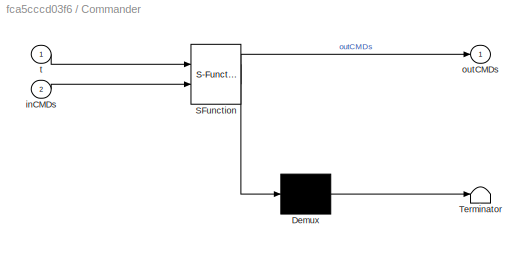
BLOCK [SubSystem] Commander
  Commented = on
  ErrorFcn = Stateflow.Translate.translate
  PermitHierarchicalResolution = ExplicitOnly
  Ports = [2, 1]
  RequestExecContextInheritance = off
  SFBlockType = MATLAB Function
  TreatAsAtomicUnit = on
BLOCK [Demux] Commander/ Demux 
  Outputs = 1
  Ports = [1, 1]
BLOCK [S-Function] Commander/ SFunction 
  EnableBusSupport = on
  FunctionName = sf_sfun
  PortCounts = [2 2]
  Ports = [2, 2]
  SFcnIsStateOwnerBlock = off
  SFunctionDeploymentMode = off
  Tag = Stateflow S-Function 2
BLOCK [Terminator] Commander/ Terminator 
BLOCK [Inport] Commander/inCMDs
  Port = 2
BLOCK [Outport] Commander/outCMDs
  VectorParamsAs1DForOutWhenUnconnected = off
BLOCK [Inport] Commander/t
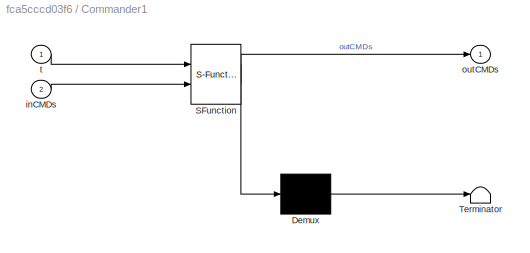
BLOCK [SubSystem] Commander1
  Commented = on
  ErrorFcn = Stateflow.Translate.translate
  PermitHierarchicalResolution = ExplicitOnly
  Ports = [2, 1]
  RequestExecContextInheritance = off
  SFBlockType = MATLAB Function
  TreatAsAtomicUnit = on
BLOCK [Demux] Commander1/ Demux 
  Outputs = 1
  Ports = [1, 1]
BLOCK [S-Function] Commander1/ SFunction 
  EnableBusSupport = on
  FunctionName = sf_sfun
  PortCounts = [2 2]
  Ports = [2, 2]
  SFcnIsStateOwnerBlock = off
  SFunctionDeploymentMode = off
  Tag = Stateflow S-Function 1
BLOCK [Terminator] Commander1/ Terminator 
BLOCK [Inport] Commander1/inCMDs
  Port = 2
BLOCK [Outport] Commander1/outCMDs
  VectorParamsAs1DForOutWhenUnconnected = off
BLOCK [Inport] Commander1/t
BLOCK [SubSystem] Commander10
  ErrorFcn = Stateflow.Translate.translate
  PermitHierarchicalResolution = ExplicitOnly
  Ports = [2, 1]
  RequestExecContextInheritance = off
  SFBlockType = MATLAB Function
  TreatAsAtomicUnit = on
BLOCK [Demux] Commander10/ Demux 
  Outputs = 1
  Ports = [1, 1]
BLOCK [S-Function] Commander10/ SFunction 
  EnableBusSupport = on
  FunctionName = sf_sfun
  PortCounts = [2 2]
  Ports = [2, 2]
  SFcnIsStateOwnerBlock = off
  SFunctionDeploymentMode = off
  Tag = Stateflow S-Function 11
BLOCK [Terminator] Commander10/ Terminator 
BLOCK [Inport] Commander10/inCMDs
  Port = 2
BLOCK [Outport] Commander10/outCMDs
  VectorParamsAs1DForOutWhenUnconnected = off
BLOCK [Inport] Commander10/t
BLOCK [SubSystem] Commander11
  ErrorFcn = Stateflow.Translate.translate
  PermitHierarchicalResolution = ExplicitOnly
  Ports = [2, 1]
  RequestExecContextInheritance = off
  SFBlockType = MATLAB Function
  TreatAsAtomicUnit = on
BLOCK [Demux] Commander11/ Demux 
  Outputs = 1
  Ports = [1, 1]
BLOCK [S-Function] Commander11/ SFunction 
  EnableBusSupport = on
  FunctionName = sf_sfun
  PortCounts = [2 2]
  Ports = [2, 2]
  SFcnIsStateOwnerBlock = off
  SFunctionDeploymentMode = off
  Tag = Stateflow S-Function 12
BLOCK [Terminator] Commander11/ Terminator 
BLOCK [Inport] Commander11/inCMDs
  Port = 2
BLOCK [Outport] Commander11/outCMDs
  VectorParamsAs1DForOutWhenUnconnected = off
BLOCK [Inport] Commander11/t
BLOCK [SubSystem] Commander12
  ErrorFcn = Stateflow.Translate.translate
  PermitHierarchicalResolution = ExplicitOnly
  Ports = [2, 1]
  RequestExecContextInheritance = off
  SFBlockType = MATLAB Function
  TreatAsAtomicUnit = on
BLOCK [Demux] Commander12/ Demux 
  Outputs = 1
  Ports = [1, 1]
BLOCK [S-Function] Commander12/ SFunction 
  EnableBusSupport = on
  FunctionName = sf_sfun
  PortCounts = [2 2]
  Ports = [2, 2]
  SFcnIsStateOwnerBlock = off
  SFunctionDeploymentMode = off
  Tag = Stateflow S-Function 13
BLOCK [Terminator] Commander12/ Terminator 
BLOCK [Inport] Commander12/inCMDs
  Port = 2
BLOCK [Outport] Commander12/outCMDs
  VectorParamsAs1DForOutWhenUnconnected = off
BLOCK [Inport] Commander12/t
BLOCK [SubSystem] Commander13
  ErrorFcn = Stateflow.Translate.translate
  PermitHierarchicalResolution = ExplicitOnly
  Ports = [2, 1]
  RequestExecContextInheritance = off
  SFBlockType = MATLAB Function
  TreatAsAtomicUnit = on
BLOCK [Demux] Commander13/ Demux 
  Outputs = 1
  Ports = [1, 1]
BLOCK [S-Function] Commander13/ SFunction 
  EnableBusSupport = on
  FunctionName = sf_sfun
  PortCounts = [2 2]
  Ports = [2, 2]
  SFcnIsStateOwnerBlock = off
  SFunctionDeploymentMode = off
  Tag = Stateflow S-Function 14
BLOCK [Terminator] Commander13/ Terminator 
BLOCK [Inport] Commander13/inCMDs
  Port = 2
BLOCK [Outport] Commander13/outCMDs
  VectorParamsAs1DForOutWhenUnconnected = off
BLOCK [Inport] Commander13/t
BLOCK [SubSystem] Commander2
  ErrorFcn = Stateflow.Translate.translate
  PermitHierarchicalResolution = ExplicitOnly
  Ports = [2, 1]
  RequestExecContextInheritance = off
  SFBlockType = MATLAB Function
  TreatAsAtomicUnit = on
BLOCK [Demux] Commander2/ Demux 
  Outputs = 1
  Ports = [1, 1]
BLOCK [S-Function] Commander2/ SFunction 
  EnableBusSupport = on
  FunctionName = sf_sfun
  PortCounts = [2 2]
  Ports = [2, 2]
  SFcnIsStateOwnerBlock = off
  SFunctionDeploymentMode = off
  Tag = Stateflow S-Function 3
BLOCK [Terminator] Commander2/ Terminator 
BLOCK [Inport] Commander2/inCMDs
  Port = 2
BLOCK [Outport] Commander2/outCMDs
  VectorParamsAs1DForOutWhenUnconnected = off
BLOCK [Inport] Commander2/t
BLOCK [SubSystem] Commander3
  ErrorFcn = Stateflow.Translate.translate
  PermitHierarchicalResolution = ExplicitOnly
  Ports = [2, 1]
  RequestExecContextInheritance = off
  SFBlockType = MATLAB Function
  TreatAsAtomicUnit = on
BLOCK [Demux] Commander3/ Demux 
  Outputs = 1
  Ports = [1, 1]
BLOCK [S-Function] Commander3/ SFunction 
  EnableBusSupport = on
  FunctionName = sf_sfun
  PortCounts = [2 2]
  Ports = [2, 2]
  SFcnIsStateOwnerBlock = off
  SFunctionDeploymentMode = off
  Tag = Stateflow S-Function 4
BLOCK [Terminator] Commander3/ Terminator 
BLOCK [Inport] Commander3/inCMDs
  Port = 2
BLOCK [Outport] Commander3/outCMDs
  VectorParamsAs1DForOutWhenUnconnected = off
BLOCK [Inport] Commander3/t
BLOCK [SubSystem] Commander4
  ErrorFcn = Stateflow.Translate.translate
  PermitHierarchicalResolution = ExplicitOnly
  Ports = [2, 1]
  RequestExecContextInheritance = off
  SFBlockType = MATLAB Function
  TreatAsAtomicUnit = on
BLOCK [Demux] Commander4/ Demux 
  Outputs = 1
  Ports = [1, 1]
BLOCK [S-Function] Commander4/ SFunction 
  EnableBusSupport = on
  FunctionName = sf_sfun
  PortCounts = [2 2]
  Ports = [2, 2]
  SFcnIsStateOwnerBlock = off
  SFunctionDeploymentMode = off
  Tag = Stateflow S-Function 5
BLOCK [Terminator] Commander4/ Terminator 
BLOCK [Inport] Commander4/inCMDs
  Port = 2
BLOCK [Outport] Commander4/outCMDs
  VectorParamsAs1DForOutWhenUnconnected = off
BLOCK [Inport] Commander4/t
BLOCK [SubSystem] Commander5
  ErrorFcn = Stateflow.Translate.translate
  PermitHierarchicalResolution = ExplicitOnly
  Ports = [2, 1]
  RequestExecContextInheritance = off
  SFBlockType = MATLAB Function
  TreatAsAtomicUnit = on
BLOCK [Demux] Commander5/ Demux 
  Outputs = 1
  Ports = [1, 1]
BLOCK [S-Function] Commander5/ SFunction 
  EnableBusSupport = on
  FunctionName = sf_sfun
  PortCounts = [2 2]
  Ports = [2, 2]
  SFcnIsStateOwnerBlock = off
  SFunctionDeploymentMode = off
  Tag = Stateflow S-Function 6
BLOCK [Terminator] Commander5/ Terminator 
BLOCK [Inport] Commander5/inCMDs
  Port = 2
BLOCK [Outport] Commander5/outCMDs
  VectorParamsAs1DForOutWhenUnconnected = off
BLOCK [Inport] Commander5/t
BLOCK [SubSystem] Commander6
  ErrorFcn = Stateflow.Translate.translate
  PermitHierarchicalResolution = ExplicitOnly
  Ports = [2, 1]
  RequestExecContextInheritance = off
  SFBlockType = MATLAB Function
  TreatAsAtomicUnit = on
BLOCK [Demux] Commander6/ Demux 
  Outputs = 1
  Ports = [1, 1]
BLOCK [S-Function] Commander6/ SFunction 
  EnableBusSupport = on
  FunctionName = sf_sfun
  PortCounts = [2 2]
  Ports = [2, 2]
  SFcnIsStateOwnerBlock = off
  SFunctionDeploymentMode = off
  Tag = Stateflow S-Function 7
BLOCK [Terminator] Commander6/ Terminator 
BLOCK [Inport] Commander6/inCMDs
  Port = 2
BLOCK [Outport] Commander6/outCMDs
  VectorParamsAs1DForOutWhenUnconnected = off
BLOCK [Inport] Commander6/t
BLOCK [SubSystem] Commander7
  ErrorFcn = Stateflow.Translate.translate
  PermitHierarchicalResolution = ExplicitOnly
  Ports = [2, 1]
  RequestExecContextInheritance = off
  SFBlockType = MATLAB Function
  TreatAsAtomicUnit = on
BLOCK [Demux] Commander7/ Demux 
  Outputs = 1
  Ports = [1, 1]
BLOCK [S-Function] Commander7/ SFunction 
  EnableBusSupport = on
  FunctionName = sf_sfun
  PortCounts = [2 2]
  Ports = [2, 2]
  SFcnIsStateOwnerBlock = off
  SFunctionDeploymentMode = off
  Tag = Stateflow S-Function 8
BLOCK [Terminator] Commander7/ Terminator 
BLOCK [Inport] Commander7/inCMDs
  Port = 2
BLOCK [Outport] Commander7/outCMDs
  VectorParamsAs1DForOutWhenUnconnected = off
BLOCK [Inport] Commander7/t
BLOCK [SubSystem] Commander8
  ErrorFcn = Stateflow.Translate.translate
  PermitHierarchicalResolution = ExplicitOnly
  Ports = [2, 1]
  RequestExecContextInheritance = off
  SFBlockType = MATLAB Function
  TreatAsAtomicUnit = on
BLOCK [Demux] Commander8/ Demux 
  Outputs = 1
  Ports = [1, 1]
BLOCK [S-Function] Commander8/ SFunction 
  EnableBusSupport = on
  FunctionName = sf_sfun
  PortCounts = [2 2]
  Ports = [2, 2]
  SFcnIsStateOwnerBlock = off
  SFunctionDeploymentMode = off
  Tag = Stateflow S-Function 9
BLOCK [Terminator] Commander8/ Terminator 
BLOCK [Inport] Commander8/inCMDs
  Port = 2
BLOCK [Outport] Commander8/outCMDs
  VectorParamsAs1DForOutWhenUnconnected = off
BLOCK [Inport] Commander8/t
BLOCK [SubSystem] Commander9
  ErrorFcn = Stateflow.Translate.translate
  PermitHierarchicalResolution = ExplicitOnly
  Ports = [2, 1]
  RequestExecContextInheritance = off
  SFBlockType = MATLAB Function
  TreatAsAtomicUnit = on
BLOCK [Demux] Commander9/ Demux 
  Outputs = 1
  Ports = [1, 1]
BLOCK [S-Function] Commander9/ SFunction 
  EnableBusSupport = on
  FunctionName = sf_sfun
  PortCounts = [2 2]
  Ports = [2, 2]
  SFcnIsStateOwnerBlock = off
  SFunctionDeploymentMode = off
  Tag = Stateflow S-Function 10
BLOCK [Terminator] Commander9/ Terminator 
BLOCK [Inport] Commander9/inCMDs
  Port = 2
BLOCK [Outport] Commander9/outCMDs
  VectorParamsAs1DForOutWhenUnconnected = off
BLOCK [Inport] Commander9/t
BLOCK [Demux] Demux1
  Ports = [1, 4]
BLOCK [Demux] Demux10
  Ports = [1, 4]
BLOCK [Demux] Demux11
  Ports = [1, 4]
BLOCK [Demux] Demux2
  Ports = [1, 4]
BLOCK [Demux] Demux24
  Ports = [1, 4]
BLOCK [Demux] Demux3
  Ports = [1, 4]
BLOCK [Demux] Demux4
  Ports = [1, 4]
BLOCK [Demux] Demux5
  Ports = [1, 4]
BLOCK [Demux] Demux6
  Ports = [1, 4]
BLOCK [Demux] Demux7
  Ports = [1, 4]
BLOCK [Demux] Demux8
  Ports = [1, 4]
BLOCK [Demux] Demux9
  Ports = [1, 4]
BLOCK [Display] Display
  Decimation = 1
  Ports = [1]
BLOCK [Display] Display1
  Decimation = 1
  Ports = [1]
BLOCK [Display] Display10
  Decimation = 1
  Ports = [1]
BLOCK [Display] Display11
  Decimation = 1
  Ports = [1]
BLOCK [Display] Display12
  Decimation = 1
  Ports = [1]
BLOCK [Display] Display13
  Decimation = 1
  Ports = [1]
BLOCK [Display] Display14
  Decimation = 1
  Ports = [1]
BLOCK [Display] Display15
  Decimation = 1
  Ports = [1]
BLOCK [Display] Display16
  Decimation = 1
  Ports = [1]
BLOCK [Display] Display17
  Decimation = 1
  Ports = [1]
BLOCK [Display] Display18
  Decimation = 1
  Ports = [1]
BLOCK [Display] Display19
  Decimation = 1
  Ports = [1]
BLOCK [Display] Display2
  Decimation = 1
  Ports = [1]
BLOCK [Display] Display20
  Decimation = 1
  Ports = [1]
BLOCK [Display] Display21
  Decimation = 1
  Ports = [1]
BLOCK [Display] Display22
  Decimation = 1
  Ports = [1]
BLOCK [Display] Display23
  Decimation = 1
  Ports = [1]
BLOCK [Display] Display24
  Decimation = 1
  Ports = [1]
BLOCK [Display] Display25
  Decimation = 1
  Ports = [1]
BLOCK [Display] Display26
  Decimation = 1
  Ports = [1]
BLOCK [Display] Display27
  Decimation = 1
  Ports = [1]
BLOCK [Display] Display28
  Decimation = 1
  Ports = [1]
BLOCK [Display] Display29
  Decimation = 1
  Ports = [1]
BLOCK [Display] Display3
  Decimation = 1
  Ports = [1]
BLOCK [Display] Display30
  Decimation = 1
  Ports = [1]
BLOCK [Display] Display31
  Decimation = 1
  Ports = [1]
BLOCK [Display] Display32
  Decimation = 1
  Ports = [1]
BLOCK [Display] Display4
  Decimation = 1
  Ports = [1]
BLOCK [Display] Display49
  Decimation = 1
  Ports = [1]
BLOCK [Display] Display5
  Decimation = 1
  Ports = [1]
BLOCK [Display] Display50
  Decimation = 1
  Ports = [1]
BLOCK [Display] Display51
  Decimation = 1
  Ports = [1]
BLOCK [Display] Display52
  Decimation = 1
  Ports = [1]
BLOCK [Display] Display53
  Decimation = 1
  Ports = [1]
BLOCK [Display] Display54
  Decimation = 1
  Ports = [1]
BLOCK [Display] Display55
  Decimation = 1
  Ports = [1]
BLOCK [Display] Display56
  Decimation = 1
  Ports = [1]
BLOCK [Display] Display57
  Decimation = 1
  Ports = [1]
BLOCK [Display] Display58
  Decimation = 1
  Ports = [1]
BLOCK [Display] Display59
  Decimation = 1
  Ports = [1]
BLOCK [Display] Display6
  Decimation = 1
  Ports = [1]
BLOCK [Display] Display60
  Decimation = 1
  Ports = [1]
BLOCK [Display] Display61
  Decimation = 1
  Ports = [1]
BLOCK [Display] Display62
  Decimation = 1
  Ports = [1]
BLOCK [Display] Display63
  Decimation = 1
  Ports = [1]
BLOCK [Display] Display64
  Decimation = 1
  Ports = [1]
BLOCK [Display] Display7
  Decimation = 1
  Ports = [1]
BLOCK [Display] Display8
  Decimation = 1
  Ports = [1]
BLOCK [Display] Display9
  Decimation = 1
  Ports = [1]
BLOCK [Display] Last Valid Data1
  Commented = on
  Decimation = 1
  Ports = [1]
BLOCK [Display] Last Valid Data10
  Decimation = 1
  Ports = [1]
BLOCK [Display] Last Valid Data11
  Decimation = 1
  Ports = [1]
BLOCK [Display] Last Valid Data12
  Decimation = 1
  Ports = [1]
BLOCK [Display] Last Valid Data13
  Decimation = 1
  Ports = [1]
BLOCK [Display] Last Valid Data14
  Decimation = 1
  Ports = [1]
BLOCK [Display] Last Valid Data2
  Decimation = 1
  Ports = [1]
BLOCK [Display] Last Valid Data3
  Decimation = 1
  Ports = [1]
BLOCK [Display] Last Valid Data4
  Commented = on
  Decimation = 1
  Ports = [1]
BLOCK [Display] Last Valid Data5
  Decimation = 1
  Ports = [1]
BLOCK [Display] Last Valid Data6
  Decimation = 1
  Ports = [1]
BLOCK [Display] Last Valid Data7
  Decimation = 1
  Ports = [1]
BLOCK [Display] Last Valid Data8
  Decimation = 1
  Ports = [1]
BLOCK [Display] Last Valid Data9
  Decimation = 1
  Ports = [1]
BLOCK [Mux] Mux1
  DisplayOption = bar
  Inputs = 5
  Ports = [5, 1]
BLOCK [Mux] Mux10
  DisplayOption = bar
  Inputs = 5
  Ports = [5, 1]
BLOCK [Mux] Mux11
  DisplayOption = bar
  Inputs = 5
  Ports = [5, 1]
BLOCK [Mux] Mux2
  DisplayOption = bar
  Inputs = 5
  Ports = [5, 1]
BLOCK [Mux] Mux24
  Commented = on
  DisplayOption = bar
  Inputs = 5
  Ports = [5, 1]
BLOCK [Mux] Mux25
  Commented = on
  DisplayOption = bar
  Inputs = 5
  Ports = [5, 1]
BLOCK [Mux] Mux26
  DisplayOption = bar
  Inputs = 5
  Ports = [5, 1]
BLOCK [Mux] Mux3
  DisplayOption = bar
  Inputs = 5
  Ports = [5, 1]
BLOCK [Mux] Mux4
  DisplayOption = bar
  Inputs = 5
  Ports = [5, 1]
BLOCK [Mux] Mux5
  DisplayOption = bar
  Inputs = 5
  Ports = [5, 1]
BLOCK [Mux] Mux6
  DisplayOption = bar
  Inputs = 5
  Ports = [5, 1]
BLOCK [Mux] Mux7
  DisplayOption = bar
  Inputs = 5
  Ports = [5, 1]
BLOCK [Mux] Mux8
  DisplayOption = bar
  Inputs = 5
  Ports = [5, 1]
BLOCK [Mux] Mux9
  DisplayOption = bar
  Inputs = 5
  Ports = [5, 1]
BLOCK [Constant] PosX
  Value = 160
BLOCK [Constant] PosX//Vel
  Commented = on
  Value = 500
BLOCK [Constant] PosX1
  Value = 160
BLOCK [Constant] PosX1//Vel1
  Commented = on
  Value = 500
BLOCK [Constant] PosX10
  Value = 160
BLOCK [Constant] PosX11
  Value = 160
BLOCK [Constant] PosX2
  Value = 160
BLOCK [Constant] PosX3
  Value = 160
BLOCK [Constant] PosX4
  Value = 160
BLOCK [Constant] PosX5
  Value = 160
BLOCK [Constant] PosX6
  Value = 160
BLOCK [Constant] PosX7
  Value = 160
BLOCK [Constant] PosX8
  Value = 160
BLOCK [Constant] PosX9
  Value = 160
BLOCK [Constant] PosY
  Value = -2000
BLOCK [Constant] PosY//Alt
  Commented = on
  Value = -500
BLOCK [Constant] PosY1
  Value = -2000
BLOCK [Constant] PosY1//Yaw1
  Commented = on
  Value = -500
BLOCK [Constant] PosY10
  Value = -2000
BLOCK [Constant] PosY11
  Value = -2000
BLOCK [Constant] PosY2
  Value = -2000
BLOCK [Constant] PosY3
  Value = -2000
BLOCK [Constant] PosY4
  Value = -2000
BLOCK [Constant] PosY5
  Value = -2000
BLOCK [Constant] PosY6
  Value = -2000
BLOCK [Constant] PosY7
  Value = -2000
BLOCK [Constant] PosY8
  Value = -2000
BLOCK [Constant] PosY9
  Value = -2000
BLOCK [Constant] PosZ
  Value = 10/180*pi
BLOCK [Constant] PosZ//Yaw
  Commented = on
BLOCK [Constant] PosZ1
  Value = 10/180*pi
BLOCK [Constant] PosZ1//Alt1
  Commented = on
BLOCK [Constant] PosZ10
  Value = 10/180*pi
BLOCK [Constant] PosZ11
  Value = 10/180*pi
BLOCK [Constant] PosZ2
  Value = 10/180*pi
BLOCK [Constant] PosZ3
  Value = 10/180*pi
BLOCK [Constant] PosZ4
  Value = 10/180*pi
BLOCK [Constant] PosZ5
  Value = 10/180*pi
BLOCK [Constant] PosZ6
  Value = 10/180*pi
BLOCK [Constant] PosZ7
  Value = 10/180*pi
BLOCK [Constant] PosZ8
  Value = 10/180*pi
BLOCK [Constant] PosZ9
  Value = 10/180*pi
BLOCK [S-Function] RflyUdpFast
  Commented = on
  EnableBusSupport = off
  FunctionName = RflyUdpFast
  Parameters = port,num,modeValue,T,ip
  Ports = [50, 50]
  SFcnIsStateOwnerBlock = off
  SFunctionDeploymentMode = off
BLOCK [Reference] Simulation Pace1  REF=aerolibanimutils/Simulation Pace
  AttributesFormatString = %<SleepMode>\n%<SimulationPace> sec/sec
  Ports = [0, 1]
  SourceBlock = aerolibanimutils/Simulation Pace
  SourceProductBaseCode = AE
  SourceType = Simulation Pace
BLOCK [S-Function] UDP Recv1
  EnableBusSupport = off
  FunctionName = RflyUdpFast
  Parameters = port,num,modeValue,T,ip
  Ports = [4, 4]
  SFcnIsStateOwnerBlock = off
  SFunctionDeploymentMode = off
BLOCK [S-Function] UDP Recv2
  EnableBusSupport = off
  FunctionName = RflyUdpFast
  Parameters = port,num,modeValue,T,ip
  Ports = [4, 4]
  SFcnIsStateOwnerBlock = off
  SFunctionDeploymentMode = off
BLOCK [S-Function] UDP Recv4
  EnableBusSupport = off
  FunctionName = RflyUdpFast
  Parameters = port,num,modeValue,T,ip
  Ports = [4, 4]
  SFcnIsStateOwnerBlock = off
  SFunctionDeploymentMode = off
BLOCK [Constant] flag
  Commented = on
  Value = 13
BLOCK [Constant] flag1
  Commented = on
  Value = 13
BLOCK [Constant] flag10
  Value = 13
BLOCK [Constant] flag11
  Value = 13
BLOCK [Constant] flag12
  Value = 13
BLOCK [Constant] flag13
  Value = 13
BLOCK [Constant] flag2
  Value = 13
BLOCK [Constant] flag3
  Value = 13
BLOCK [Constant] flag4
  Value = 13
BLOCK [Constant] flag5
  Value = 13
BLOCK [Constant] flag6
  Value = 13
BLOCK [Constant] flag7
  Value = 13
BLOCK [Constant] flag8
  Value = 13
BLOCK [Constant] flag9
  Value = 13
BLOCK [Constant] yaw
  Commented = on
  Value = 0
BLOCK [Constant] yaw1
  Commented = on
  Value = 0
BLOCK [Constant] yaw10
  Value = 0
BLOCK [Constant] yaw11
  Value = 0
BLOCK [Constant] yaw12
  Value = 0
BLOCK [Constant] yaw13
  Value = 0
BLOCK [Constant] yaw2
  Value = 0
BLOCK [Constant] yaw3
  Value = 0
BLOCK [Constant] yaw4
  Value = 0
BLOCK [Constant] yaw5
  Value = 0
BLOCK [Constant] yaw6
  Value = 0
BLOCK [Constant] yaw7
  Value = 0
BLOCK [Constant] yaw8
  Value = 0
BLOCK [Constant] yaw9
  Value = 0
ANNOTATION (root): 0: Earth Vel; 1:Body Vel; 2: Earth Pos; 3:Body Pos
ANNOTATION (root): 这里展示了发送一条flag为2的消息，对应 地球坐标系下的位置指令 发送本指令时，固定翼会飞到预设的点
ANNOTATION (root): 飞机状态反馈
LINE 10号飞机状态反馈/Demux1:1 -> 10号飞机状态反馈/GlobalPos1:1
LINE 10号飞机状态反馈/Demux1:2 -> 10号飞机状态反馈/LocalPos1:1
LINE 10号飞机状态反馈/Demux1:3 -> 10号飞机状态反馈/LocalVel1:1
LINE 10号飞机状态反馈/Demux1:4 -> 10号飞机状态反馈/AngEular1:1
LINE 10号飞机状态反馈/In1:1 -> 10号飞机状态反馈/Demux1:1
LINE 10号飞机状态反馈1/Demux1:1 -> 10号飞机状态反馈1/GlobalPos1:1
LINE 10号飞机状态反馈1/Demux1:2 -> 10号飞机状态反馈1/LocalPos1:1
LINE 10号飞机状态反馈1/Demux1:3 -> 10号飞机状态反馈1/LocalVel1:1
LINE 10号飞机状态反馈1/Demux1:4 -> 10号飞机状态反馈1/AngEular1:1
LINE 10号飞机状态反馈1/In1:1 -> 10号飞机状态反馈1/Demux1:1
LINE 10号飞机状态反馈2/Demux1:1 -> 10号飞机状态反馈2/GlobalPos1:1
LINE 10号飞机状态反馈2/Demux1:2 -> 10号飞机状态反馈2/LocalPos1:1
LINE 10号飞机状态反馈2/Demux1:3 -> 10号飞机状态反馈2/LocalVel1:1
LINE 10号飞机状态反馈2/Demux1:4 -> 10号飞机状态反馈2/AngEular1:1
LINE 10号飞机状态反馈2/In1:1 -> 10号飞机状态反馈2/Demux1:1
LINE 10号飞机状态反馈3/Demux1:1 -> 10号飞机状态反馈3/GlobalPos1:1
LINE 10号飞机状态反馈3/Demux1:2 -> 10号飞机状态反馈3/LocalPos1:1
LINE 10号飞机状态反馈3/Demux1:3 -> 10号飞机状态反馈3/LocalVel1:1
LINE 10号飞机状态反馈3/Demux1:4 -> 10号飞机状态反馈3/AngEular1:1
LINE 10号飞机状态反馈3/In1:1 -> 10号飞机状态反馈3/Demux1:1
LINE 10号飞机状态反馈4/Demux1:1 -> 10号飞机状态反馈4/GlobalPos1:1
LINE 10号飞机状态反馈4/Demux1:2 -> 10号飞机状态反馈4/LocalPos1:1
LINE 10号飞机状态反馈4/Demux1:3 -> 10号飞机状态反馈4/LocalVel1:1
LINE 10号飞机状态反馈4/Demux1:4 -> 10号飞机状态反馈4/AngEular1:1
LINE 10号飞机状态反馈4/In1:1 -> 10号飞机状态反馈4/Demux1:1
LINE 1号飞机状态反馈/Demux2:1 -> 1号飞机状态反馈/GlobalPos:1
LINE 1号飞机状态反馈/Demux2:2 -> 1号飞机状态反馈/LocalPos:1
LINE 1号飞机状态反馈/Demux2:3 -> 1号飞机状态反馈/LocalVel:1
LINE 1号飞机状态反馈/Demux2:4 -> 1号飞机状态反馈/AngEular:1
LINE 1号飞机状态反馈/In1:1 -> 1号飞机状态反馈/Demux2:1
LINE 1号飞机状态反馈1/Demux2:1 -> 1号飞机状态反馈1/GlobalPos:1
LINE 1号飞机状态反馈1/Demux2:2 -> 1号飞机状态反馈1/LocalPos:1
LINE 1号飞机状态反馈1/Demux2:3 -> 1号飞机状态反馈1/LocalVel:1
LINE 1号飞机状态反馈1/Demux2:4 -> 1号飞机状态反馈1/AngEular:1
LINE 1号飞机状态反馈1/In1:1 -> 1号飞机状态反馈1/Demux2:1
LINE 1号飞机状态反馈2/Demux2:1 -> 1号飞机状态反馈2/GlobalPos:1
LINE 1号飞机状态反馈2/Demux2:2 -> 1号飞机状态反馈2/LocalPos:1
LINE 1号飞机状态反馈2/Demux2:3 -> 1号飞机状态反馈2/LocalVel:1
LINE 1号飞机状态反馈2/Demux2:4 -> 1号飞机状态反馈2/AngEular:1
LINE 1号飞机状态反馈2/In1:1 -> 1号飞机状态反馈2/Demux2:1
LINE 1号飞机状态反馈3/Demux2:1 -> 1号飞机状态反馈3/GlobalPos:1
LINE 1号飞机状态反馈3/Demux2:2 -> 1号飞机状态反馈3/LocalPos:1
LINE 1号飞机状态反馈3/Demux2:3 -> 1号飞机状态反馈3/LocalVel:1
LINE 1号飞机状态反馈3/Demux2:4 -> 1号飞机状态反馈3/AngEular:1
LINE 1号飞机状态反馈3/In1:1 -> 1号飞机状态反馈3/Demux2:1
LINE 1号飞机状态反馈4/Demux2:1 -> 1号飞机状态反馈4/GlobalPos:1
LINE 1号飞机状态反馈4/Demux2:2 -> 1号飞机状态反馈4/LocalPos:1
LINE 1号飞机状态反馈4/Demux2:3 -> 1号飞机状态反馈4/LocalVel:1
LINE 1号飞机状态反馈4/Demux2:4 -> 1号飞机状态反馈4/AngEular:1
LINE 1号飞机状态反馈4/In1:1 -> 1号飞机状态反馈4/Demux2:1
LINE 2号飞机状态反馈/Demux1:1 -> 2号飞机状态反馈/GlobalPos1:1
LINE 2号飞机状态反馈/Demux1:2 -> 2号飞机状态反馈/LocalPos1:1
LINE 2号飞机状态反馈/Demux1:3 -> 2号飞机状态反馈/LocalVel1:1
LINE 2号飞机状态反馈/Demux1:4 -> 2号飞机状态反馈/AngEular1:1
LINE 2号飞机状态反馈/In1:1 -> 2号飞机状态反馈/Demux1:1
LINE 2号飞机状态反馈1/Demux1:1 -> 2号飞机状态反馈1/GlobalPos1:1
LINE 2号飞机状态反馈1/Demux1:2 -> 2号飞机状态反馈1/LocalPos1:1
LINE 2号飞机状态反馈1/Demux1:3 -> 2号飞机状态反馈1/LocalVel1:1
LINE 2号飞机状态反馈1/Demux1:4 -> 2号飞机状态反馈1/AngEular1:1
LINE 2号飞机状态反馈1/In1:1 -> 2号飞机状态反馈1/Demux1:1
LINE 2号飞机状态反馈2/Demux1:1 -> 2号飞机状态反馈2/GlobalPos1:1
LINE 2号飞机状态反馈2/Demux1:2 -> 2号飞机状态反馈2/LocalPos1:1
LINE 2号飞机状态反馈2/Demux1:3 -> 2号飞机状态反馈2/LocalVel1:1
LINE 2号飞机状态反馈2/Demux1:4 -> 2号飞机状态反馈2/AngEular1:1
LINE 2号飞机状态反馈2/In1:1 -> 2号飞机状态反馈2/Demux1:1
LINE 2号飞机状态反馈3/Demux1:1 -> 2号飞机状态反馈3/GlobalPos1:1
LINE 2号飞机状态反馈3/Demux1:2 -> 2号飞机状态反馈3/LocalPos1:1
LINE 2号飞机状态反馈3/Demux1:3 -> 2号飞机状态反馈3/LocalVel1:1
LINE 2号飞机状态反馈3/Demux1:4 -> 2号飞机状态反馈3/AngEular1:1
LINE 2号飞机状态反馈3/In1:1 -> 2号飞机状态反馈3/Demux1:1
LINE 2号飞机状态反馈4/Demux1:1 -> 2号飞机状态反馈4/GlobalPos1:1
LINE 2号飞机状态反馈4/Demux1:2 -> 2号飞机状态反馈4/LocalPos1:1
LINE 2号飞机状态反馈4/Demux1:3 -> 2号飞机状态反馈4/LocalVel1:1
LINE 2号飞机状态反馈4/Demux1:4 -> 2号飞机状态反馈4/AngEular1:1
LINE 2号飞机状态反馈4/In1:1 -> 2号飞机状态反馈4/Demux1:1
LINE 3号飞机状态反馈/Demux1:1 -> 3号飞机状态反馈/GlobalPos1:1
LINE 3号飞机状态反馈/Demux1:2 -> 3号飞机状态反馈/LocalPos1:1
LINE 3号飞机状态反馈/Demux1:3 -> 3号飞机状态反馈/LocalVel1:1
LINE 3号飞机状态反馈/Demux1:4 -> 3号飞机状态反馈/AngEular1:1
LINE 3号飞机状态反馈/In1:1 -> 3号飞机状态反馈/Demux1:1
LINE 3号飞机状态反馈1/Demux1:1 -> 3号飞机状态反馈1/GlobalPos1:1
LINE 3号飞机状态反馈1/Demux1:2 -> 3号飞机状态反馈1/LocalPos1:1
LINE 3号飞机状态反馈1/Demux1:3 -> 3号飞机状态反馈1/LocalVel1:1
LINE 3号飞机状态反馈1/Demux1:4 -> 3号飞机状态反馈1/AngEular1:1
LINE 3号飞机状态反馈1/In1:1 -> 3号飞机状态反馈1/Demux1:1
LINE 3号飞机状态反馈2/Demux1:1 -> 3号飞机状态反馈2/GlobalPos1:1
LINE 3号飞机状态反馈2/Demux1:2 -> 3号飞机状态反馈2/LocalPos1:1
LINE 3号飞机状态反馈2/Demux1:3 -> 3号飞机状态反馈2/LocalVel1:1
LINE 3号飞机状态反馈2/Demux1:4 -> 3号飞机状态反馈2/AngEular1:1
LINE 3号飞机状态反馈2/In1:1 -> 3号飞机状态反馈2/Demux1:1
LINE 3号飞机状态反馈3/Demux1:1 -> 3号飞机状态反馈3/GlobalPos1:1
LINE 3号飞机状态反馈3/Demux1:2 -> 3号飞机状态反馈3/LocalPos1:1
LINE 3号飞机状态反馈3/Demux1:3 -> 3号飞机状态反馈3/LocalVel1:1
LINE 3号飞机状态反馈3/Demux1:4 -> 3号飞机状态反馈3/AngEular1:1
LINE 3号飞机状态反馈3/In1:1 -> 3号飞机状态反馈3/Demux1:1
LINE 3号飞机状态反馈4/Demux1:1 -> 3号飞机状态反馈4/GlobalPos1:1
LINE 3号飞机状态反馈4/Demux1:2 -> 3号飞机状态反馈4/LocalPos1:1
LINE 3号飞机状态反馈4/Demux1:3 -> 3号飞机状态反馈4/LocalVel1:1
LINE 3号飞机状态反馈4/Demux1:4 -> 3号飞机状态反馈4/AngEular1:1
LINE 3号飞机状态反馈4/In1:1 -> 3号飞机状态反馈4/Demux1:1
LINE 4号飞机状态反馈/Demux1:1 -> 4号飞机状态反馈/GlobalPos1:1
LINE 4号飞机状态反馈/Demux1:2 -> 4号飞机状态反馈/LocalPos1:1
LINE 4号飞机状态反馈/Demux1:3 -> 4号飞机状态反馈/LocalVel1:1
LINE 4号飞机状态反馈/Demux1:4 -> 4号飞机状态反馈/AngEular1:1
LINE 4号飞机状态反馈/In1:1 -> 4号飞机状态反馈/Demux1:1
LINE 4号飞机状态反馈1/Demux1:1 -> 4号飞机状态反馈1/GlobalPos1:1
LINE 4号飞机状态反馈1/Demux1:2 -> 4号飞机状态反馈1/LocalPos1:1
LINE 4号飞机状态反馈1/Demux1:3 -> 4号飞机状态反馈1/LocalVel1:1
LINE 4号飞机状态反馈1/Demux1:4 -> 4号飞机状态反馈1/AngEular1:1
LINE 4号飞机状态反馈1/In1:1 -> 4号飞机状态反馈1/Demux1:1
LINE 4号飞机状态反馈2/Demux1:1 -> 4号飞机状态反馈2/GlobalPos1:1
LINE 4号飞机状态反馈2/Demux1:2 -> 4号飞机状态反馈2/LocalPos1:1
LINE 4号飞机状态反馈2/Demux1:3 -> 4号飞机状态反馈2/LocalVel1:1
LINE 4号飞机状态反馈2/Demux1:4 -> 4号飞机状态反馈2/AngEular1:1
LINE 4号飞机状态反馈2/In1:1 -> 4号飞机状态反馈2/Demux1:1
LINE 4号飞机状态反馈3/Demux1:1 -> 4号飞机状态反馈3/GlobalPos1:1
LINE 4号飞机状态反馈3/Demux1:2 -> 4号飞机状态反馈3/LocalPos1:1
LINE 4号飞机状态反馈3/Demux1:3 -> 4号飞机状态反馈3/LocalVel1:1
LINE 4号飞机状态反馈3/Demux1:4 -> 4号飞机状态反馈3/AngEular1:1
LINE 4号飞机状态反馈3/In1:1 -> 4号飞机状态反馈3/Demux1:1
LINE 4号飞机状态反馈4/Demux1:1 -> 4号飞机状态反馈4/GlobalPos1:1
LINE 4号飞机状态反馈4/Demux1:2 -> 4号飞机状态反馈4/LocalPos1:1
LINE 4号飞机状态反馈4/Demux1:3 -> 4号飞机状态反馈4/LocalVel1:1
LINE 4号飞机状态反馈4/Demux1:4 -> 4号飞机状态反馈4/AngEular1:1
LINE 4号飞机状态反馈4/In1:1 -> 4号飞机状态反馈4/Demux1:1
LINE 5号飞机状态反馈/Demux1:1 -> 5号飞机状态反馈/GlobalPos1:1
LINE 5号飞机状态反馈/Demux1:2 -> 5号飞机状态反馈/LocalPos1:1
LINE 5号飞机状态反馈/Demux1:3 -> 5号飞机状态反馈/LocalVel1:1
LINE 5号飞机状态反馈/Demux1:4 -> 5号飞机状态反馈/AngEular1:1
LINE 5号飞机状态反馈/In1:1 -> 5号飞机状态反馈/Demux1:1
LINE 5号飞机状态反馈1/Demux1:1 -> 5号飞机状态反馈1/GlobalPos1:1
LINE 5号飞机状态反馈1/Demux1:2 -> 5号飞机状态反馈1/LocalPos1:1
LINE 5号飞机状态反馈1/Demux1:3 -> 5号飞机状态反馈1/LocalVel1:1
LINE 5号飞机状态反馈1/Demux1:4 -> 5号飞机状态反馈1/AngEular1:1
LINE 5号飞机状态反馈1/In1:1 -> 5号飞机状态反馈1/Demux1:1
LINE 5号飞机状态反馈2/Demux1:1 -> 5号飞机状态反馈2/GlobalPos1:1
LINE 5号飞机状态反馈2/Demux1:2 -> 5号飞机状态反馈2/LocalPos1:1
LINE 5号飞机状态反馈2/Demux1:3 -> 5号飞机状态反馈2/LocalVel1:1
LINE 5号飞机状态反馈2/Demux1:4 -> 5号飞机状态反馈2/AngEular1:1
LINE 5号飞机状态反馈2/In1:1 -> 5号飞机状态反馈2/Demux1:1
LINE 5号飞机状态反馈3/Demux1:1 -> 5号飞机状态反馈3/GlobalPos1:1
LINE 5号飞机状态反馈3/Demux1:2 -> 5号飞机状态反馈3/LocalPos1:1
LINE 5号飞机状态反馈3/Demux1:3 -> 5号飞机状态反馈3/LocalVel1:1
LINE 5号飞机状态反馈3/Demux1:4 -> 5号飞机状态反馈3/AngEular1:1
LINE 5号飞机状态反馈3/In1:1 -> 5号飞机状态反馈3/Demux1:1
LINE 5号飞机状态反馈4/Demux1:1 -> 5号飞机状态反馈4/GlobalPos1:1
LINE 5号飞机状态反馈4/Demux1:2 -> 5号飞机状态反馈4/LocalPos1:1
LINE 5号飞机状态反馈4/Demux1:3 -> 5号飞机状态反馈4/LocalVel1:1
LINE 5号飞机状态反馈4/Demux1:4 -> 5号飞机状态反馈4/AngEular1:1
LINE 5号飞机状态反馈4/In1:1 -> 5号飞机状态反馈4/Demux1:1
LINE 6号飞机状态反馈/Demux1:1 -> 6号飞机状态反馈/GlobalPos1:1
LINE 6号飞机状态反馈/Demux1:2 -> 6号飞机状态反馈/LocalPos1:1
LINE 6号飞机状态反馈/Demux1:3 -> 6号飞机状态反馈/LocalVel1:1
LINE 6号飞机状态反馈/Demux1:4 -> 6号飞机状态反馈/AngEular1:1
LINE 6号飞机状态反馈/In1:1 -> 6号飞机状态反馈/Demux1:1
LINE 6号飞机状态反馈1/Demux1:1 -> 6号飞机状态反馈1/GlobalPos1:1
LINE 6号飞机状态反馈1/Demux1:2 -> 6号飞机状态反馈1/LocalPos1:1
LINE 6号飞机状态反馈1/Demux1:3 -> 6号飞机状态反馈1/LocalVel1:1
LINE 6号飞机状态反馈1/Demux1:4 -> 6号飞机状态反馈1/AngEular1:1
LINE 6号飞机状态反馈1/In1:1 -> 6号飞机状态反馈1/Demux1:1
LINE 6号飞机状态反馈2/Demux1:1 -> 6号飞机状态反馈2/GlobalPos1:1
LINE 6号飞机状态反馈2/Demux1:2 -> 6号飞机状态反馈2/LocalPos1:1
LINE 6号飞机状态反馈2/Demux1:3 -> 6号飞机状态反馈2/LocalVel1:1
LINE 6号飞机状态反馈2/Demux1:4 -> 6号飞机状态反馈2/AngEular1:1
LINE 6号飞机状态反馈2/In1:1 -> 6号飞机状态反馈2/Demux1:1
LINE 6号飞机状态反馈3/Demux1:1 -> 6号飞机状态反馈3/GlobalPos1:1
LINE 6号飞机状态反馈3/Demux1:2 -> 6号飞机状态反馈3/LocalPos1:1
LINE 6号飞机状态反馈3/Demux1:3 -> 6号飞机状态反馈3/LocalVel1:1
LINE 6号飞机状态反馈3/Demux1:4 -> 6号飞机状态反馈3/AngEular1:1
LINE 6号飞机状态反馈3/In1:1 -> 6号飞机状态反馈3/Demux1:1
LINE 6号飞机状态反馈4/Demux1:1 -> 6号飞机状态反馈4/GlobalPos1:1
LINE 6号飞机状态反馈4/Demux1:2 -> 6号飞机状态反馈4/LocalPos1:1
LINE 6号飞机状态反馈4/Demux1:3 -> 6号飞机状态反馈4/LocalVel1:1
LINE 6号飞机状态反馈4/Demux1:4 -> 6号飞机状态反馈4/AngEular1:1
LINE 6号飞机状态反馈4/In1:1 -> 6号飞机状态反馈4/Demux1:1
LINE 7号飞机状态反馈/Demux1:1 -> 7号飞机状态反馈/GlobalPos1:1
LINE 7号飞机状态反馈/Demux1:2 -> 7号飞机状态反馈/LocalPos1:1
LINE 7号飞机状态反馈/Demux1:3 -> 7号飞机状态反馈/LocalVel1:1
LINE 7号飞机状态反馈/Demux1:4 -> 7号飞机状态反馈/AngEular1:1
LINE 7号飞机状态反馈/In1:1 -> 7号飞机状态反馈/Demux1:1
LINE 7号飞机状态反馈1/Demux1:1 -> 7号飞机状态反馈1/GlobalPos1:1
LINE 7号飞机状态反馈1/Demux1:2 -> 7号飞机状态反馈1/LocalPos1:1
LINE 7号飞机状态反馈1/Demux1:3 -> 7号飞机状态反馈1/LocalVel1:1
LINE 7号飞机状态反馈1/Demux1:4 -> 7号飞机状态反馈1/AngEular1:1
LINE 7号飞机状态反馈1/In1:1 -> 7号飞机状态反馈1/Demux1:1
LINE 7号飞机状态反馈2/Demux1:1 -> 7号飞机状态反馈2/GlobalPos1:1
LINE 7号飞机状态反馈2/Demux1:2 -> 7号飞机状态反馈2/LocalPos1:1
LINE 7号飞机状态反馈2/Demux1:3 -> 7号飞机状态反馈2/LocalVel1:1
LINE 7号飞机状态反馈2/Demux1:4 -> 7号飞机状态反馈2/AngEular1:1
LINE 7号飞机状态反馈2/In1:1 -> 7号飞机状态反馈2/Demux1:1
LINE 7号飞机状态反馈3/Demux1:1 -> 7号飞机状态反馈3/GlobalPos1:1
LINE 7号飞机状态反馈3/Demux1:2 -> 7号飞机状态反馈3/LocalPos1:1
LINE 7号飞机状态反馈3/Demux1:3 -> 7号飞机状态反馈3/LocalVel1:1
LINE 7号飞机状态反馈3/Demux1:4 -> 7号飞机状态反馈3/AngEular1:1
LINE 7号飞机状态反馈3/In1:1 -> 7号飞机状态反馈3/Demux1:1
LINE 7号飞机状态反馈4/Demux1:1 -> 7号飞机状态反馈4/GlobalPos1:1
LINE 7号飞机状态反馈4/Demux1:2 -> 7号飞机状态反馈4/LocalPos1:1
LINE 7号飞机状态反馈4/Demux1:3 -> 7号飞机状态反馈4/LocalVel1:1
LINE 7号飞机状态反馈4/Demux1:4 -> 7号飞机状态反馈4/AngEular1:1
LINE 7号飞机状态反馈4/In1:1 -> 7号飞机状态反馈4/Demux1:1
LINE 8号飞机状态反馈/Demux1:1 -> 8号飞机状态反馈/GlobalPos1:1
LINE 8号飞机状态反馈/Demux1:2 -> 8号飞机状态反馈/LocalPos1:1
LINE 8号飞机状态反馈/Demux1:3 -> 8号飞机状态反馈/LocalVel1:1
LINE 8号飞机状态反馈/Demux1:4 -> 8号飞机状态反馈/AngEular1:1
LINE 8号飞机状态反馈/In1:1 -> 8号飞机状态反馈/Demux1:1
LINE 8号飞机状态反馈1/Demux1:1 -> 8号飞机状态反馈1/GlobalPos1:1
LINE 8号飞机状态反馈1/Demux1:2 -> 8号飞机状态反馈1/LocalPos1:1
LINE 8号飞机状态反馈1/Demux1:3 -> 8号飞机状态反馈1/LocalVel1:1
LINE 8号飞机状态反馈1/Demux1:4 -> 8号飞机状态反馈1/AngEular1:1
LINE 8号飞机状态反馈1/In1:1 -> 8号飞机状态反馈1/Demux1:1
LINE 8号飞机状态反馈2/Demux1:1 -> 8号飞机状态反馈2/GlobalPos1:1
LINE 8号飞机状态反馈2/Demux1:2 -> 8号飞机状态反馈2/LocalPos1:1
LINE 8号飞机状态反馈2/Demux1:3 -> 8号飞机状态反馈2/LocalVel1:1
LINE 8号飞机状态反馈2/Demux1:4 -> 8号飞机状态反馈2/AngEular1:1
LINE 8号飞机状态反馈2/In1:1 -> 8号飞机状态反馈2/Demux1:1
LINE 8号飞机状态反馈3/Demux1:1 -> 8号飞机状态反馈3/GlobalPos1:1
LINE 8号飞机状态反馈3/Demux1:2 -> 8号飞机状态反馈3/LocalPos1:1
LINE 8号飞机状态反馈3/Demux1:3 -> 8号飞机状态反馈3/LocalVel1:1
LINE 8号飞机状态反馈3/Demux1:4 -> 8号飞机状态反馈3/AngEular1:1
LINE 8号飞机状态反馈3/In1:1 -> 8号飞机状态反馈3/Demux1:1
LINE 8号飞机状态反馈4/Demux1:1 -> 8号飞机状态反馈4/GlobalPos1:1
LINE 8号飞机状态反馈4/Demux1:2 -> 8号飞机状态反馈4/LocalPos1:1
LINE 8号飞机状态反馈4/Demux1:3 -> 8号飞机状态反馈4/LocalVel1:1
LINE 8号飞机状态反馈4/Demux1:4 -> 8号飞机状态反馈4/AngEular1:1
LINE 8号飞机状态反馈4/In1:1 -> 8号飞机状态反馈4/Demux1:1
LINE 9号飞机状态反馈/Demux1:1 -> 9号飞机状态反馈/GlobalPos1:1
LINE 9号飞机状态反馈/Demux1:2 -> 9号飞机状态反馈/LocalPos1:1
LINE 9号飞机状态反馈/Demux1:3 -> 9号飞机状态反馈/LocalVel1:1
LINE 9号飞机状态反馈/Demux1:4 -> 9号飞机状态反馈/AngEular1:1
LINE 9号飞机状态反馈/In1:1 -> 9号飞机状态反馈/Demux1:1
LINE 9号飞机状态反馈1/Demux1:1 -> 9号飞机状态反馈1/GlobalPos1:1
LINE 9号飞机状态反馈1/Demux1:2 -> 9号飞机状态反馈1/LocalPos1:1
LINE 9号飞机状态反馈1/Demux1:3 -> 9号飞机状态反馈1/LocalVel1:1
LINE 9号飞机状态反馈1/Demux1:4 -> 9号飞机状态反馈1/AngEular1:1
LINE 9号飞机状态反馈1/In1:1 -> 9号飞机状态反馈1/Demux1:1
LINE 9号飞机状态反馈2/Demux1:1 -> 9号飞机状态反馈2/GlobalPos1:1
LINE 9号飞机状态反馈2/Demux1:2 -> 9号飞机状态反馈2/LocalPos1:1
LINE 9号飞机状态反馈2/Demux1:3 -> 9号飞机状态反馈2/LocalVel1:1
LINE 9号飞机状态反馈2/Demux1:4 -> 9号飞机状态反馈2/AngEular1:1
LINE 9号飞机状态反馈2/In1:1 -> 9号飞机状态反馈2/Demux1:1
LINE 9号飞机状态反馈3/Demux1:1 -> 9号飞机状态反馈3/GlobalPos1:1
LINE 9号飞机状态反馈3/Demux1:2 -> 9号飞机状态反馈3/LocalPos1:1
LINE 9号飞机状态反馈3/Demux1:3 -> 9号飞机状态反馈3/LocalVel1:1
LINE 9号飞机状态反馈3/Demux1:4 -> 9号飞机状态反馈3/AngEular1:1
LINE 9号飞机状态反馈3/In1:1 -> 9号飞机状态反馈3/Demux1:1
LINE 9号飞机状态反馈4/Demux1:1 -> 9号飞机状态反馈4/GlobalPos1:1
LINE 9号飞机状态反馈4/Demux1:2 -> 9号飞机状态反馈4/LocalPos1:1
LINE 9号飞机状态反馈4/Demux1:3 -> 9号飞机状态反馈4/LocalVel1:1
LINE 9号飞机状态反馈4/Demux1:4 -> 9号飞机状态反馈4/AngEular1:1
LINE 9号飞机状态反馈4/In1:1 -> 9号飞机状态反馈4/Demux1:1
LINE Clock10:1 -> Commander10:1
LINE Clock11:1 -> Commander11:1
LINE Clock12:1 -> Commander12:1
LINE Clock13:1 -> Commander13:1
LINE Clock1:1 -> Commander1:1
LINE Clock2:1 -> Commander2:1
LINE Clock3:1 -> Commander3:1
LINE Clock4:1 -> Commander4:1
LINE Clock5:1 -> Commander5:1
LINE Clock6:1 -> Commander6:1
LINE Clock7:1 -> Commander7:1
LINE Clock8:1 -> Commander8:1
LINE Clock9:1 -> Commander9:1
LINE Clock:1 -> Commander:1
LINE Commander10:1 -> UDP Recv2:1
LINE Commander11:1 -> UDP Recv2:2
LINE Commander12:1 -> UDP Recv2:3
LINE Commander13:1 -> UDP Recv2:4
NET Commander1:1 -> RflyUdpFast:26, RflyUdpFast:27, RflyUdpFast:28, RflyUdpFast:29, RflyUdpFast:30, RflyUdpFast:31, RflyUdpFast:32, RflyUdpFast:33, RflyUdpFast:34, RflyUdpFast:35, RflyUdpFast:36, RflyUdpFast:37, RflyUdpFast:38, RflyUdpFast:39, RflyUdpFast:40, RflyUdpFast:41, RflyUdpFast:42, RflyUdpFast:43, RflyUdpFast:44, RflyUdpFast:45, RflyUdpFast:46, RflyUdpFast:47, RflyUdpFast:48, RflyUdpFast:49, RflyUdpFast:50
LINE Commander2:1 -> UDP Recv1:1
LINE Commander3:1 -> UDP Recv1:2
LINE Commander4:1 -> UDP Recv1:3
LINE Commander5:1 -> UDP Recv1:4
LINE Commander6:1 -> UDP Recv4:1
LINE Commander7:1 -> UDP Recv4:2
LINE Commander8:1 -> UDP Recv4:3
LINE Commander9:1 -> UDP Recv4:4
NET Commander:1 -> RflyUdpFast:1, RflyUdpFast:10, RflyUdpFast:11, RflyUdpFast:12, RflyUdpFast:13, RflyUdpFast:14, RflyUdpFast:15, RflyUdpFast:16, RflyUdpFast:17, RflyUdpFast:18, RflyUdpFast:19, RflyUdpFast:2, RflyUdpFast:20, RflyUdpFast:21, RflyUdpFast:22, RflyUdpFast:23, RflyUdpFast:24, RflyUdpFast:25, RflyUdpFast:3, RflyUdpFast:4, RflyUdpFast:5, RflyUdpFast:6, RflyUdpFast:7, RflyUdpFast:8, RflyUdpFast:9
LINE Demux10:1 -> Display21:1
LINE Demux10:2 -> Display22:1
LINE Demux10:3 -> Display23:1
LINE Demux10:4 -> Display24:1
LINE Demux11:1 -> Display32:1
LINE Demux11:2 -> Display18:1
LINE Demux11:3 -> Display19:1
LINE Demux11:4 -> Display20:1
LINE Demux1:1 -> Display49:1
LINE Demux1:2 -> Display57:1
LINE Demux1:3 -> Display58:1
LINE Demux1:4 -> Display59:1
LINE Demux24:1 -> Display53:1
LINE Demux24:2 -> Display54:1
LINE Demux24:3 -> Display55:1
LINE Demux24:4 -> Display56:1
LINE Demux2:1 -> Display60:1
LINE Demux2:2 -> Display61:1
LINE Demux2:3 -> Display62:1
LINE Demux2:4 -> Display63:1
LINE Demux3:1 -> Display64:1
LINE Demux3:2 -> Display50:1
LINE Demux3:3 -> Display51:1
LINE Demux3:4 -> Display52:1
LINE Demux4:1 -> Display1:1
LINE Demux4:2 -> Display2:1
LINE Demux4:3 -> Display3:1
LINE Demux4:4 -> Display4:1
LINE Demux5:1 -> Display5:1
LINE Demux5:2 -> Display6:1
LINE Demux5:3 -> Display7:1
LINE Demux5:4 -> Display8:1
LINE Demux6:1 -> Display9:1
LINE Demux6:2 -> Display10:1
LINE Demux6:3 -> Display11:1
LINE Demux6:4 -> Display12:1
LINE Demux7:1 -> Display13:1
LINE Demux7:2 -> Display14:1
LINE Demux7:3 -> Display15:1
LINE Demux7:4 -> Display16:1
LINE Demux8:1 -> Display17:1
LINE Demux8:2 -> Display25:1
LINE Demux8:3 -> Display26:1
LINE Demux8:4 -> Display27:1
LINE Demux9:1 -> Display28:1
LINE Demux9:2 -> Display29:1
LINE Demux9:3 -> Display30:1
LINE Demux9:4 -> Display31:1
NET Mux10:1 -> Commander12:2, Last Valid Data14:1
NET Mux11:1 -> Commander13:2, Last Valid Data11:1
NET Mux1:1 -> Commander7:2, Last Valid Data8:1
NET Mux24:1 -> Commander:2, Last Valid Data4:1
NET Mux25:1 -> Commander1:2, Last Valid Data1:1
NET Mux26:1 -> Commander2:2, Last Valid Data2:1
NET Mux2:1 -> Commander3:2, Last Valid Data3:1
NET Mux3:1 -> Commander4:2, Last Valid Data5:1
NET Mux4:1 -> Commander5:2, Last Valid Data6:1
NET Mux5:1 -> Commander6:2, Last Valid Data7:1
NET Mux6:1 -> Commander8:2, Last Valid Data9:1
NET Mux7:1 -> Commander9:2, Last Valid Data10:1
NET Mux8:1 -> Commander11:2, Last Valid Data13:1
NET Mux9:1 -> Commander10:2, Last Valid Data12:1
LINE PosX//Vel:1 -> Mux24:2
LINE PosX1//Vel1:1 -> Mux25:2
LINE PosX10:1 -> Mux10:2
LINE PosX11:1 -> Mux11:2
LINE PosX1:1 -> Mux2:2
LINE PosX2:1 -> Mux3:2
LINE PosX3:1 -> Mux4:2
LINE PosX4:1 -> Mux5:2
LINE PosX5:1 -> Mux1:2
LINE PosX6:1 -> Mux6:2
LINE PosX7:1 -> Mux7:2
LINE PosX8:1 -> Mux9:2
LINE PosX9:1 -> Mux8:2
LINE PosX:1 -> Mux26:2
LINE PosY//Alt:1 -> Mux24:3
LINE PosY1//Yaw1:1 -> Mux25:3
LINE PosY10:1 -> Mux10:3
LINE PosY11:1 -> Mux11:3
LINE PosY1:1 -> Mux2:3
LINE PosY2:1 -> Mux3:3
LINE PosY3:1 -> Mux4:3
LINE PosY4:1 -> Mux5:3
LINE PosY5:1 -> Mux1:3
LINE PosY6:1 -> Mux6:3
LINE PosY7:1 -> Mux7:3
LINE PosY8:1 -> Mux9:3
LINE PosY9:1 -> Mux8:3
LINE PosY:1 -> Mux26:3
LINE PosZ//Yaw:1 -> Mux24:4
LINE PosZ1//Alt1:1 -> Mux25:4
LINE PosZ10:1 -> Mux10:4
LINE PosZ11:1 -> Mux11:4
LINE PosZ1:1 -> Mux2:4
LINE PosZ2:1 -> Mux3:4
LINE PosZ3:1 -> Mux4:4
LINE PosZ4:1 -> Mux5:4
LINE PosZ5:1 -> Mux1:4
LINE PosZ6:1 -> Mux6:4
LINE PosZ7:1 -> Mux7:4
LINE PosZ8:1 -> Mux9:4
LINE PosZ9:1 -> Mux8:4
LINE PosZ:1 -> Mux26:4
LINE RflyUdpFast:1 -> 1号飞机状态反馈:1
LINE RflyUdpFast:10 -> 10号飞机状态反馈:1
LINE RflyUdpFast:11 -> 1号飞机状态反馈1:1
LINE RflyUdpFast:12 -> 2号飞机状态反馈1:1
LINE RflyUdpFast:13 -> 3号飞机状态反馈1:1
LINE RflyUdpFast:14 -> 4号飞机状态反馈1:1
LINE RflyUdpFast:15 -> 5号飞机状态反馈1:1
LINE RflyUdpFast:16 -> 6号飞机状态反馈1:1
LINE RflyUdpFast:17 -> 7号飞机状态反馈1:1
LINE RflyUdpFast:18 -> 8号飞机状态反馈1:1
LINE RflyUdpFast:19 -> 9号飞机状态反馈1:1
LINE RflyUdpFast:2 -> 2号飞机状态反馈:1
LINE RflyUdpFast:20 -> 10号飞机状态反馈1:1
LINE RflyUdpFast:21 -> 1号飞机状态反馈2:1
LINE RflyUdpFast:22 -> 2号飞机状态反馈2:1
LINE RflyUdpFast:23 -> 3号飞机状态反馈2:1
LINE RflyUdpFast:24 -> 4号飞机状态反馈2:1
LINE RflyUdpFast:25 -> 5号飞机状态反馈2:1
LINE RflyUdpFast:26 -> 6号飞机状态反馈2:1
LINE RflyUdpFast:27 -> 7号飞机状态反馈2:1
LINE RflyUdpFast:28 -> 8号飞机状态反馈2:1
LINE RflyUdpFast:29 -> 9号飞机状态反馈2:1
LINE RflyUdpFast:3 -> 3号飞机状态反馈:1
LINE RflyUdpFast:30 -> 10号飞机状态反馈2:1
LINE RflyUdpFast:31 -> 1号飞机状态反馈3:1
LINE RflyUdpFast:32 -> 2号飞机状态反馈3:1
LINE RflyUdpFast:33 -> 3号飞机状态反馈3:1
LINE RflyUdpFast:34 -> 4号飞机状态反馈3:1
LINE RflyUdpFast:35 -> 5号飞机状态反馈3:1
LINE RflyUdpFast:36 -> 6号飞机状态反馈3:1
LINE RflyUdpFast:37 -> 7号飞机状态反馈3:1
LINE RflyUdpFast:38 -> 8号飞机状态反馈3:1
LINE RflyUdpFast:39 -> 9号飞机状态反馈3:1
LINE RflyUdpFast:4 -> 4号飞机状态反馈:1
LINE RflyUdpFast:40 -> 10号飞机状态反馈3:1
LINE RflyUdpFast:41 -> 1号飞机状态反馈4:1
LINE RflyUdpFast:42 -> 2号飞机状态反馈4:1
LINE RflyUdpFast:43 -> 3号飞机状态反馈4:1
LINE RflyUdpFast:44 -> 4号飞机状态反馈4:1
LINE RflyUdpFast:45 -> 5号飞机状态反馈4:1
LINE RflyUdpFast:46 -> 6号飞机状态反馈4:1
LINE RflyUdpFast:47 -> 7号飞机状态反馈4:1
LINE RflyUdpFast:48 -> 8号飞机状态反馈4:1
LINE RflyUdpFast:49 -> 9号飞机状态反馈4:1
LINE RflyUdpFast:5 -> 5号飞机状态反馈:1
LINE RflyUdpFast:50 -> 10号飞机状态反馈4:1
LINE RflyUdpFast:6 -> 6号飞机状态反馈:1
LINE RflyUdpFast:7 -> 7号飞机状态反馈:1
LINE RflyUdpFast:8 -> 8号飞机状态反馈:1
LINE RflyUdpFast:9 -> 9号飞机状态反馈:1
LINE Simulation Pace1:1 -> Display:1
LINE UDP Recv1:1 -> Demux4:1
LINE UDP Recv1:2 -> Demux5:1
LINE UDP Recv1:3 -> Demux6:1
LINE UDP Recv1:4 -> Demux7:1
LINE UDP Recv2:1 -> Demux8:1
LINE UDP Recv2:2 -> Demux9:1
LINE UDP Recv2:3 -> Demux11:1
LINE UDP Recv2:4 -> Demux10:1
LINE UDP Recv4:1 -> Demux1:1
LINE UDP Recv4:2 -> Demux2:1
LINE UDP Recv4:3 -> Demux3:1
LINE UDP Recv4:4 -> Demux24:1
LINE flag10:1 -> Mux9:1
LINE flag11:1 -> Mux8:1
LINE flag12:1 -> Mux10:1
LINE flag13:1 -> Mux11:1
LINE flag1:1 -> Mux25:1
LINE flag2:1 -> Mux26:1
LINE flag3:1 -> Mux2:1
LINE flag4:1 -> Mux3:1
LINE flag5:1 -> Mux4:1
LINE flag6:1 -> Mux5:1
LINE flag7:1 -> Mux1:1
LINE flag8:1 -> Mux6:1
LINE flag9:1 -> Mux7:1
LINE flag:1 -> Mux24:1
LINE yaw10:1 -> Mux9:5
LINE yaw11:1 -> Mux8:5
LINE yaw12:1 -> Mux10:5
LINE yaw13:1 -> Mux11:5
LINE yaw1:1 -> Mux25:5
LINE yaw2:1 -> Mux26:5
LINE yaw3:1 -> Mux2:5
LINE yaw4:1 -> Mux3:5
LINE yaw5:1 -> Mux4:5
LINE yaw6:1 -> Mux5:5
LINE yaw7:1 -> Mux1:5
LINE yaw8:1 -> Mux6:5
LINE yaw9:1 -> Mux7:5
LINE yaw:1 -> Mux24:5
note: NET lines group one-source signal fan-out (src -> all destinations, sorted); 1:1 wires keep LINE
CHART Commander11 states=1 transitions=1
  STATE_LABEL 'eML_blk_kernel()'
  STATE_LABEL 'SCRIPT:\nfunction outCMDs  = fcn(t,inCMDs)\n\noutCMDs=[-1;0;0;0;0]; % 默认空指令，不会发出\n\npersistent mode;\n\nif isempty(mode)\n    mode=0;\nend\n\n\n% 进入1阶段，发送起飞指令\nif mode==0 && t>1\n    flag=11; % 这里对应本地起飞指令\n    posX = 200; % x坐标\n    posY=0; % y坐标\n    posZ=-100;% z坐标\n    outCMDs=[flag;posX;posY;posZ;0];\n    mode=1;\nend\n\n% 10秒后，进入2模式\nif mode==1 && t>5\n    mode=2;\nend\n\n\nif mode==2\n    outCMDs=inCMDs;\nend\n'  <repeated x12 — deduplicated; at blocks: Commander11, Commander12, Commander13, Commander2, Commander3, Commander4, Commander5, Commander6, Commander7, Commander8, Commander9, Commander10>
CHART Commander12 states=1 transitions=1
  STATE_LABEL 'eML_blk_kernel()'
CHART Commander13 states=1 transitions=1
  STATE_LABEL 'eML_blk_kernel()'
CHART Commander1 states=1 transitions=1
  STATE_LABEL 'eML_blk_kernel()'
  STATE_LABEL 'SCRIPT:\nfunction outCMDs  = fcn(t,inCMDs)\n\noutCMDs=[-1;0;0;0;0]; % 默认空指令，不会发出\n\npersistent mode;\n\nif isempty(mode)\n    mode=0;\nend\n\n\n% 进入1阶段，发送起飞指令\nif mode==0 && t>3\n    flag=11; % 这里对应本地起飞指令\n    posX = 500; % x坐标\n    posY=0; % y坐标\n    posZ=-100;% z坐标\n    outCMDs=[flag;posX;posY;posZ;0];\n    mode=1;\nend\n\n% 10秒后，进入2模式\nif mode==1 && t>60\n    mode=2;\nend\n\n\nif mode==2\n    outCMDs=inCMDs;\nend\n'
CHART Commander states=1 transitions=1
  STATE_LABEL 'eML_blk_kernel()'
  STATE_LABEL 'SCRIPT:\nfunction outCMDs  = fcn(t,inCMDs)\n\noutCMDs=[-1;0;0;0;0]; % 默认空指令，不会发出\n\npersistent mode;\n\nif isempty(mode)\n    mode=0;\nend\n\n\n% 进入1阶段，发送起飞指令\nif mode==0 && t>3\n    flag=11; % 这里对应本地起飞指令\n    posX = 500; % x坐标\n    posY=0; % y坐标\n    posZ=-100;% z坐标\n    outCMDs=[flag;posX;posY;posZ;0];\n    mode=1;\nend\n\n% 10秒后，进入2模式\nif mode==1 && t>60\n    mode=2;\nend\n\n\nif mode==2\n    outCMDs=inCMDs;\nend\n'
CHART Commander2 states=1 transitions=1
  STATE_LABEL 'eML_blk_kernel()'
CHART Commander3 states=1 transitions=1
  STATE_LABEL 'eML_blk_kernel()'
CHART Commander4 states=1 transitions=1
  STATE_LABEL 'eML_blk_kernel()'
CHART Commander5 states=1 transitions=1
  STATE_LABEL 'eML_blk_kernel()'
CHART Commander6 states=1 transitions=1
  STATE_LABEL 'eML_blk_kernel()'
CHART Commander7 states=1 transitions=1
  STATE_LABEL 'eML_blk_kernel()'
CHART Commander8 states=1 transitions=1
  STATE_LABEL 'eML_blk_kernel()'
CHART Commander9 states=1 transitions=1
  STATE_LABEL 'eML_blk_kernel()'
CHART Commander10 states=1 transitions=1
  STATE_LABEL 'eML_blk_kernel()'
CHART  states=0 transitions=0
CHART  states=0 transitions=0
CHART  states=0 transitions=0
CHART  states=0 transitions=0
CHART  states=0 transitions=0
CHART  states=0 transitions=0
CHART  states=0 transitions=0
CHART  states=0 transitions=0
CHART  states=0 transitions=0
CHART  states=0 transitions=0
CHART  states=0 transitions=0
CHART  states=0 transitions=0
CHART  states=0 transitions=0
CHART  states=0 transitions=0
